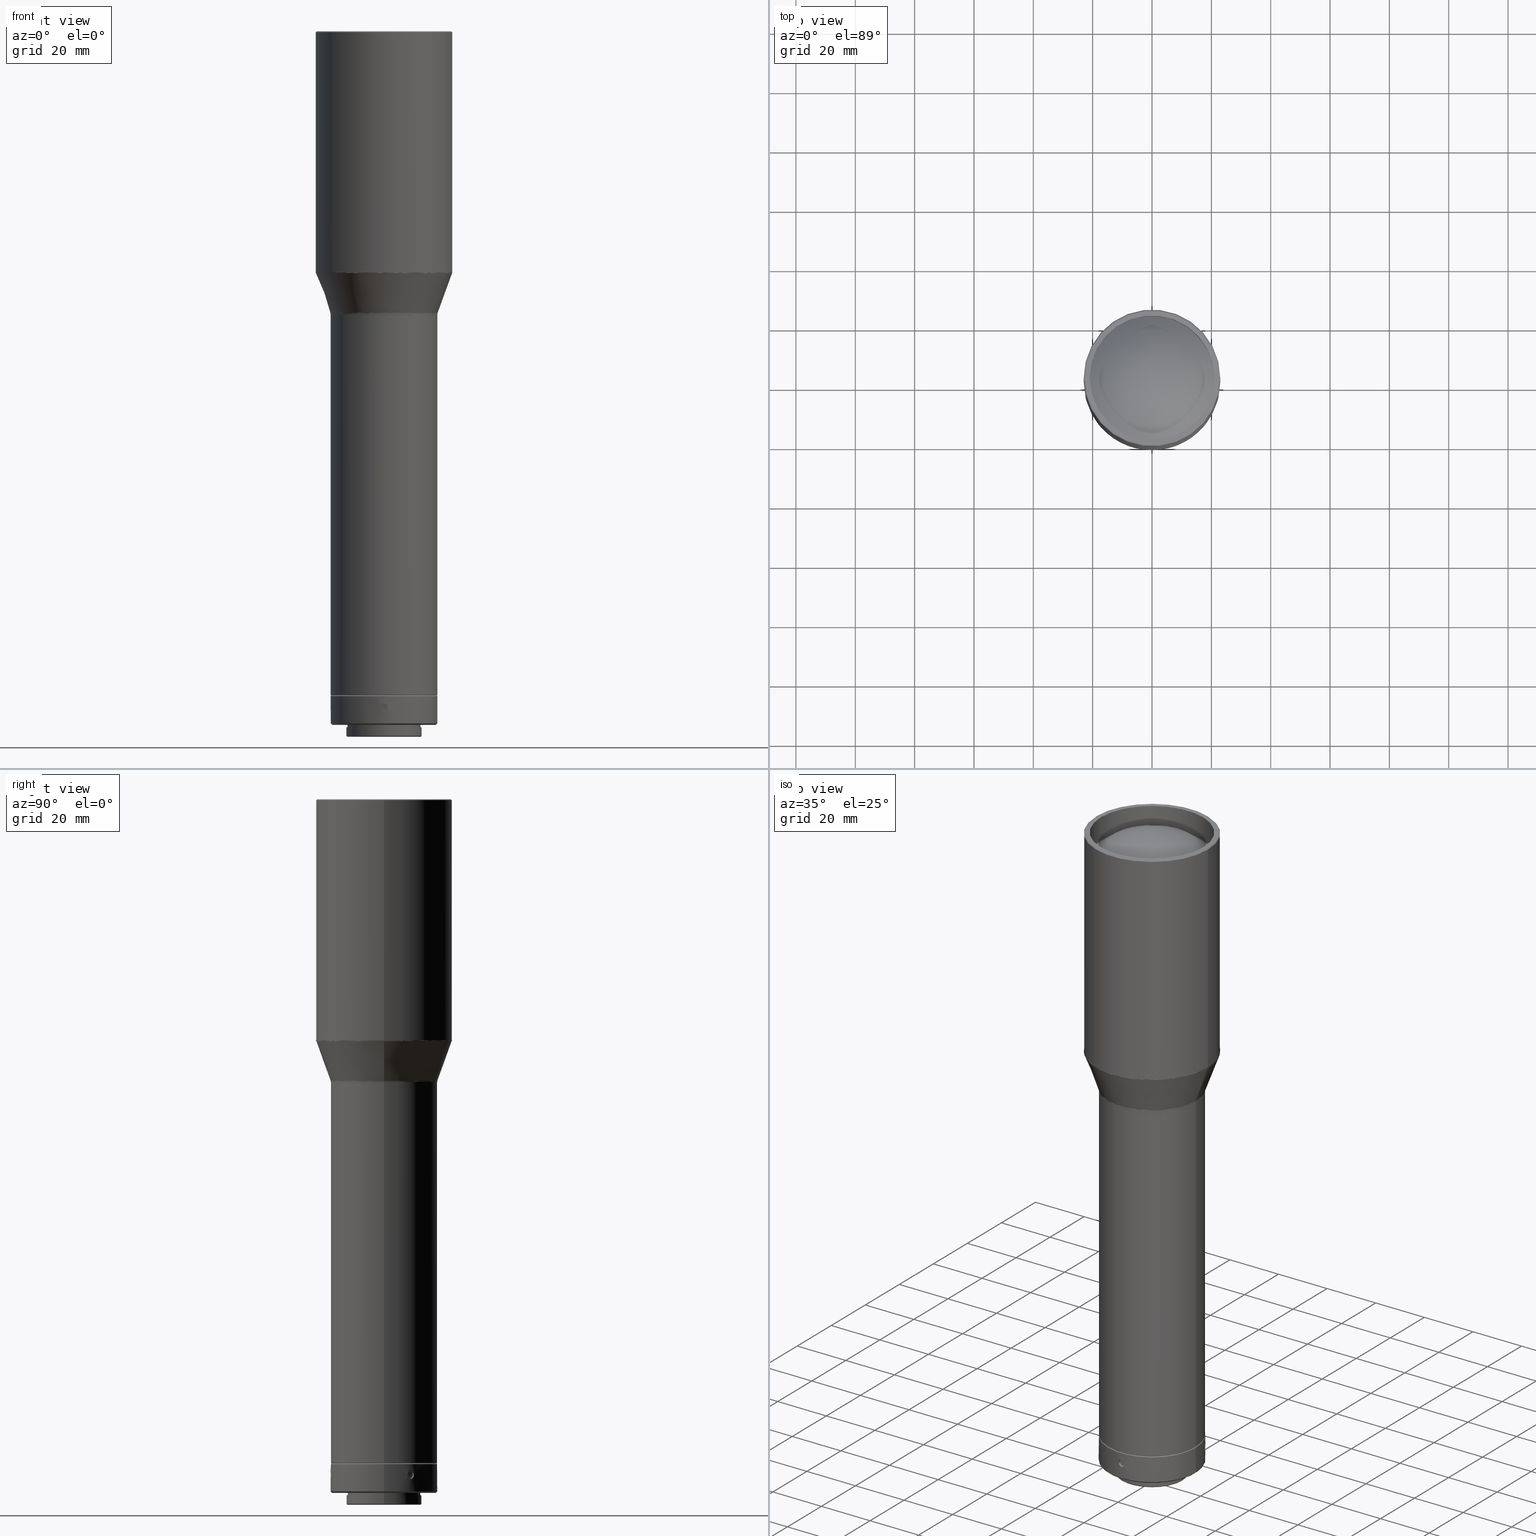
[diagram: canonical four-view strip — front | top / right | iso, engineering-drawing reading convention]
A machine part, canonical four-view strip (front | top / right | iso — engineering-drawing reading convention). The complete STEP part file that produces these views, byte-faithful:
ISO-10303-21;
HEADER;
FILE_DESCRIPTION (( 'STEP AP203' ),
    '1' );
FILE_NAME ('600086.STEP',
    '2024-08-14T02:24:10',
    ( 'Windows User' ),
    ( 'P R C' ),
    'SwSTEP 2.0',
    'SolidWorks 2020',
    '' );
FILE_SCHEMA (( 'CONFIG_CONTROL_DESIGN' ));
ENDSEC;

DATA;
#1 = CARTESIAN_POINT ( 'NONE',  ( 15.14724011265493075, 7.860176997978779667, -664.7798496925934160 ) ) ;
#2 = CIRCLE ( 'NONE', #470, 17.99999999999998934 ) ;
#3 = FACE_OUTER_BOUND ( 'NONE', #606, .T. ) ;
#4 = B_SPLINE_CURVE_WITH_KNOTS ( 'NONE', 3,
 ( #20, #358, #159, #682, #826, #608, #549, #619, #236, #808, #411, #624, #225, #285, #612, #544, #279, #486, #29, #348, #34, #687, #821, #173, #231, #813, #535, #40, #482, #756, #169, #760, #468, #155 ),
 .UNSPECIFIED., .T., .F.,
 ( 4, 2, 2, 2, 2, 2, 2, 2, 2, 2, 2, 2, 2, 2, 2, 2, 4 ),
 ( 0.000000000000000000, 0.0004885519476059295343, 0.0009771038952118590686, 0.001465655842817788603, 0.001954207790423718137, 0.002442759738029647888, 0.002931311685635577206, 0.003419863633241506523, 0.003908415580847436274, 0.004396967528453366025, 0.004885519476059295776, 0.005374071423665224660, 0.005862623371271154411, 0.006351175318877084162, 0.006839727266483013046, 0.007328279214088942797, 0.007816831161694872548 ),
 .UNSPECIFIED. ) ;
#5 = CARTESIAN_POINT ( 'NONE',  ( 14.13231190104881918, 9.565005035894392549, -666.1085857096397831 ) ) ;
#6 = EDGE_LOOP ( 'NONE', ( #406 ) ) ;
#7 = CARTESIAN_POINT ( 'NONE',  ( 1.249999999999999556, -17.01896287182436041, -665.6158166837940371 ) ) ;
#8 = CONICAL_SURFACE ( 'NONE', #477, 23.00000000000003553, 0.7853981633974482790 ) ;
#9 = PLANE ( 'NONE',  #501 ) ;
#10 = EDGE_LOOP ( 'NONE', ( #132 ) ) ;
#11 = ADVANCED_FACE ( 'NONE', ( #412, #824 ), #180, .T. ) ;
#12 = FACE_OUTER_BOUND ( 'NONE', #208, .T. ) ;
#13 = CARTESIAN_POINT ( 'NONE',  ( 0.000000000000000000, 0.000000000000000000, -661.7809450000000879 ) ) ;
#14 = ORIENTED_EDGE ( 'NONE', *, *, #24, .T. ) ;
#15 = DIRECTION ( 'NONE',  ( 1.000000000000000000, 0.000000000000000000, -0.000000000000000000 ) ) ;
#16 = CARTESIAN_POINT ( 'NONE',  ( 0.3291898029938513659, -17.06229266080207552, -664.5641413027866520 ) ) ;
#17 = CARTESIAN_POINT ( 'NONE',  ( -18.02030814396401226, 36.04061628792802452, -533.0425359303010282 ) ) ;
#18 = DIRECTION ( 'NONE',  ( 0.000000000000000000, 0.000000000000000000, 1.000000000000000000 ) ) ;
#19 = FACE_OUTER_BOUND ( 'NONE', #37, .T. ) ;
#20 = CARTESIAN_POINT ( 'NONE',  ( 16.17582393315551315, 7.895740629197085525, -665.7809450000005427 ) ) ;
#21 = CARTESIAN_POINT ( 'NONE',  ( 4.567875856050203761E-15, 1.816993461002733458E-15, -671.2809449999999742 ) ) ;
#22 = FACE_BOUND ( 'NONE', #617, .T. ) ;
#23 = ORIENTED_EDGE ( 'NONE', *, *, #324, .T. ) ;
#24 = EDGE_CURVE ( 'NONE', #747, #747, #663, .T. ) ;
#25 = DIRECTION ( 'NONE',  ( 0.000000000000000000, 0.000000000000000000, 1.000000000000000000 ) ) ;
#26 = DIRECTION ( 'NONE',  ( 0.000000000000000000, 0.000000000000000000, -1.000000000000000000 ) ) ;
#27 = EDGE_LOOP ( 'NONE', ( #729 ) ) ;
#28 = AXIS2_PLACEMENT_3D ( 'NONE', #342, #71, #659 ) ;
#29 = CARTESIAN_POINT ( 'NONE',  ( 14.94412316329297674, 10.03379964370064314, -666.1082458894952651 ) ) ;
#30 = CARTESIAN_POINT ( 'NONE',  ( 17.99999999999999289, 35.99999999999998579, -533.1577091379542708 ) ) ;
#31 = CARTESIAN_POINT ( 'NONE',  ( 22.93969262078591953, 2.387641399258159668E-16, -519.5266381626172461 ) ) ;
#32 = ORIENTED_EDGE ( 'NONE', *, *, #564, .T. ) ;
#33 = PLANE ( 'NONE',  #404 ) ;
#34 = CARTESIAN_POINT ( 'NONE',  ( 15.06517510034525920, 9.851589683955907617, -666.5495771668024645 ) ) ;
#35 = CARTESIAN_POINT ( 'NONE',  ( -14.25349743368180100, 9.383979772889720294, -665.0130305287719921 ) ) ;
#36 = CARTESIAN_POINT ( 'NONE',  ( -23.00000000000000000, -2.393918396847988367E-16, -519.3015679593189589 ) ) ;
#37 = EDGE_LOOP ( 'NONE', ( #662 ) ) ;
#38 = EDGE_CURVE ( 'NONE', #488, #488, #139, .T. ) ;
#39 = AXIS2_PLACEMENT_3D ( 'NONE', #522, #199, #140 ) ;
#40 = CARTESIAN_POINT ( 'NONE',  ( 15.89389197149334088, 8.450273622267832963, -666.8736210156605466 ) ) ;
#41 = CARTESIAN_POINT ( 'NONE',  ( -14.11385437815876998, 9.592012918291169754, -665.9461523660379498 ) ) ;
#42 = VERTEX_POINT ( 'NONE', #162 ) ;
#43 = FACE_OUTER_BOUND ( 'NONE', #6, .T. ) ;
#44 = CARTESIAN_POINT ( 'NONE',  ( -15.01384693159024231, 9.929166768100165186, -665.1509386262733869 ) ) ;
#45 = DIRECTION ( 'NONE',  ( 0.000000000000000000, 0.000000000000000000, 1.000000000000000000 ) ) ;
#46 = CYLINDRICAL_SURFACE ( 'NONE', #227, 17.99999999999998934 ) ;
#47 = CARTESIAN_POINT ( 'NONE',  ( -14.92582393315537814, 10.06080413865839951, -665.6157457607349670 ) ) ;
#48 = DATE_AND_TIME ( #321, #656 ) ;
#49 = UNCERTAINTY_MEASURE_WITH_UNIT (LENGTH_MEASURE( 1.000000000000000082E-05 ), #566, 'distance_accuracy_value', 'NONE');
#50 = EDGE_LOOP ( 'NONE', ( #547 ) ) ;
#51 = AXIS2_PLACEMENT_3D ( 'NONE', #426, #26, #105 ) ;
#52 = CARTESIAN_POINT ( 'NONE',  ( -14.94416663059033112, 10.03373538488429695, -666.1085700172557154 ) ) ;
#53 = ADVANCED_FACE ( 'NONE', ( #295 ), #558, .T. ) ;
#54 = VERTEX_POINT ( 'NONE', #258 ) ;
#55 = CARTESIAN_POINT ( 'NONE',  ( 14.45469751543642722, 9.071507377659420612, -666.8736143237532588 ) ) ;
#56 = CARTESIAN_POINT ( 'NONE',  ( -15.29425696471480478, 7.569495683497283522, -666.4113745755807940 ) ) ;
#57 = PERSON_AND_ORGANIZATION ( #160, #305 ) ;
#58 = CARTESIAN_POINT ( 'NONE',  ( 0.3284442371330014154, -17.99763189204312752, -666.9979603772535484 ) ) ;
#59 = CARTESIAN_POINT ( 'NONE',  ( 7.299024496628086641E-15, -12.29999999999999716, -671.7809450000000879 ) ) ;
#60 = CARTESIAN_POINT ( 'NONE',  ( 15.29435828140182352, 7.569290346758623222, -666.4109610543733879 ) ) ;
#61 = ADVANCED_FACE ( 'NONE', ( #43, #540 ), #220, .T. ) ;
#62 = CYLINDRICAL_SURFACE ( 'NONE', #690, 12.69999999999999751 ) ;
#63 = PERSON_AND_ORGANIZATION_ROLE ( 'creator' ) ;
#64 = CARTESIAN_POINT ( 'NONE',  ( 21.00000000000000000, 0.000000000000000000, -447.0000000000000000 ) ) ;
#65 = CARTESIAN_POINT ( 'NONE',  ( -0.7685930773333526922, -17.98395353626940363, -664.7817755139830069 ) ) ;
#66 = MANIFOLD_SOLID_BREP ( '��ת1', #597 ) ;
#67 = DIRECTION ( 'NONE',  ( 0.000000000000000000, 0.000000000000000000, -1.000000000000000000 ) ) ;
#68 = AXIS2_PLACEMENT_3D ( 'NONE', #814, #355, #337 ) ;
#69 = CARTESIAN_POINT ( 'NONE',  ( 1.000012230497523413, -17.97258022027629920, -665.0130258980899498 ) ) ;
#70 = EDGE_LOOP ( 'NONE', ( #622 ) ) ;
#71 = DIRECTION ( 'NONE',  ( -0.000000000000000000, 3.083952846180989294E-15, 1.000000000000000000 ) ) ;
#72 =( BOUNDED_SURFACE ( )  B_SPLINE_SURFACE ( 3, 3, ( 
 ( #409, #238, #300, #31, #171, #767, #823 ),
 ( #286, #542, #175, #763, #475, #562, #819 ),
 ( #36, #758, #479, #283, #616, #291, #702 ),
 ( #493, #370, #420, #228, #557, #753, #815 ) ),
 .UNSPECIFIED., .F., .T., .F. ) 
 B_SPLINE_SURFACE_WITH_KNOTS ( ( 4, 4 ),
 ( 4, 3, 4 ),
 ( 0.000000000000000000, 1.000000000000000000 ),
 ( 0.000000000000000000, 0.5000000000000000000, 1.000000000000000000 ),
 .UNSPECIFIED. ) 
 GEOMETRIC_REPRESENTATION_ITEM ( )  RATIONAL_B_SPLINE_SURFACE ( (
 ( 1.000000000000000000, 0.3333333333333333148, 0.3333333333333333148, 1.000000000000000000, 0.3333333333333333148, 0.3333333333333333148, 1.000000000000000000),
 ( 0.9898718353414743820, 0.3299572784471581088, 0.3299572784471581088, 0.9898718353414743820, 0.3299572784471581088, 0.3299572784471581088, 0.9898718353414743820),
 ( 0.9898718353414743820, 0.3299572784471581088, 0.3299572784471581088, 0.9898718353414743820, 0.3299572784471581088, 0.3299572784471581088, 0.9898718353414743820),
 ( 1.000000000000000000, 0.3333333333333333148, 0.3333333333333333148, 1.000000000000000000, 0.3333333333333333148, 0.3333333333333333148, 1.000000000000000000) ) ) 
 REPRESENTATION_ITEM ( '' )  SURFACE ( )  );
#73 = CARTESIAN_POINT ( 'NONE',  ( 3.581339779975172355E-33, 3.853573807495302464E-31, -519.1846180192916336 ) ) ;
#74 = CC_DESIGN_DATE_AND_TIME_ASSIGNMENT ( #116, #124, ( #777 ) ) ;
#75 = CYLINDRICAL_SURFACE ( 'NONE', #592, 17.06480580705611061 ) ;
#76 = ORIENTED_EDGE ( 'NONE', *, *, #201, .F. ) ;
#77 = PLANE ( 'NONE',  #570 ) ;
#78 = DIRECTION ( 'NONE',  ( 0.3830490080632378835, -0.9237280213470681067, 1.218036320871736945E-16 ) ) ;
#79 = CARTESIAN_POINT ( 'NONE',  ( 4.336808689942017736E-15, 1.816993461002733458E-15, -675.4809450000001334 ) ) ;
#80 = DIRECTION ( 'NONE',  ( -1.000000000000000000, 0.000000000000000000, -0.000000000000000000 ) ) ;
#81 = EDGE_LOOP ( 'NONE', ( #357 ) ) ;
#82 = AXIS2_PLACEMENT_3D ( 'NONE', #446, #786, #666 ) ;
#83 = FACE_OUTER_BOUND ( 'NONE', #172, .T. ) ;
#84 = DIRECTION ( 'NONE',  ( 0.000000000000000000, 0.000000000000000000, 1.000000000000000000 ) ) ;
#85 = DIRECTION ( 'NONE',  ( 0.000000000000000000, 0.000000000000000000, 1.000000000000000000 ) ) ;
#86 = CARTESIAN_POINT ( 'NONE',  ( -2.775557561562891351E-14, 1.387778780781445676E-14, -447.0000000000000568 ) ) ;
#87 = B_SPLINE_CURVE_WITH_KNOTS ( 'NONE', 3,
 ( #657, #374, #197, #434, #263, #65, #516, #121, #772, #250, #789, #725, #136, #69, #709, #327, #715, #641, #377, #309, #842, #504, #646, #58, #574, #219, #740, #527, #801, #266, #344, #143, #330, #471 ),
 .UNSPECIFIED., .T., .F.,
 ( 4, 2, 2, 2, 2, 2, 2, 2, 2, 2, 2, 2, 2, 2, 2, 2, 4 ),
 ( 0.000000000000000000, 0.0004885519476059282332, 0.0009771038952118564665, 0.001465655842817784700, 0.001954207790423712933, 0.002442759738029640949, 0.002931311685635569399, 0.003419863633241497849, 0.003908415580847425866, 0.004396967528453353882, 0.004885519476059281899, 0.005374071423665210782, 0.005862623371271138799, 0.006351175318877066815, 0.006839727266482995699, 0.007328279214088923715, 0.007816831161694851732 ),
 .UNSPECIFIED. ) ;
#88 = FACE_BOUND ( 'NONE', #400, .T. ) ;
#89 = DIRECTION ( 'NONE',  ( -0.000000000000000000, -0.000000000000000000, -1.000000000000000000 ) ) ;
#90 = CARTESIAN_POINT ( 'NONE',  ( 7.387842338598100427E-15, -12.69999999999999574, -672.5809450000000425 ) ) ;
#91 = DESIGN_CONTEXT ( 'detailed design', #750, 'design' ) ;
#92 = AXIS2_PLACEMENT_3D ( 'NONE', #630, #45, #561 ) ;
#93 = ORIENTED_EDGE ( 'NONE', *, *, #733, .T. ) ;
#94 = CARTESIAN_POINT ( 'NONE',  ( -0.7690069098545839754, -17.04785988651734385, -666.7797828885486524 ) ) ;
#95 = VERTEX_POINT ( 'NONE', #423 ) ;
#96 = CARTESIAN_POINT ( 'NONE',  ( 5.204170427930421283E-15, 1.816993461002733458E-15, -671.2809449999999742 ) ) ;
#97 = DIRECTION ( 'NONE',  ( -0.000000000000000000, -0.000000000000000000, -1.000000000000000000 ) ) ;
#98 = AXIS2_PLACEMENT_3D ( 'NONE', #424, #302, #555 ) ;
#99 = CARTESIAN_POINT ( 'NONE',  ( -0.3291871292452782094, -17.06229270324118730, -666.9977492413829623 ) ) ;
#100 = EDGE_CURVE ( 'NONE', #167, #167, #427, .T. ) ;
#101 = VERTEX_POINT ( 'NONE', #356 ) ;
#102 = EDGE_LOOP ( 'NONE', ( #796 ) ) ;
#103 = CARTESIAN_POINT ( 'NONE',  ( -1.092119772028510960, -17.02993890466842686, -666.4107019141430328 ) ) ;
#104 = CARTESIAN_POINT ( 'NONE',  ( -14.11385400797206024, 9.592013462990317763, -665.6157426036747893 ) ) ;
#105 = DIRECTION ( 'NONE',  ( -1.000000000000000000, 0.000000000000000000, 0.000000000000000000 ) ) ;
#106 = ORIENTED_EDGE ( 'NONE', *, *, #442, .T. ) ;
#107 = CARTESIAN_POINT ( 'NONE',  ( 1.091974288410473948, -17.02994723250910880, -666.4106819271797804 ) ) ;
#108 = CARTESIAN_POINT ( 'NONE',  ( -14.37959791172611190, 9.189563851578057552, -666.7801105159963981 ) ) ;
#109 = CARTESIAN_POINT ( 'NONE',  ( -17.70000000000000639, 1.816993461002733458E-15, -661.7809450000000879 ) ) ;
#110 = CIRCLE ( 'NONE', #325, 12.69999999999999751 ) ;
#111 = CARTESIAN_POINT ( 'NONE',  ( -15.89389229175798235, 8.450273022655027333, -664.6882693457097275 ) ) ;
#112 = COORDINATED_UNIVERSAL_TIME_OFFSET ( 8, 0, .AHEAD. ) ;
#113 = VERTEX_POINT ( 'NONE', #688 ) ;
#114 = EDGE_CURVE ( 'NONE', #42, #42, #613, .T. ) ;
#115 = CARTESIAN_POINT ( 'NONE',  ( -16.10573125108188108, 8.037996199706920919, -665.1505204048874020 ) ) ;
#116 = DATE_AND_TIME ( #184, #686 ) ;
#117 =( NAMED_UNIT ( * ) SI_UNIT ( $, .STERADIAN. ) SOLID_ANGLE_UNIT ( ) );
#118 = CARTESIAN_POINT ( 'NONE',  ( 15.36385433637801512, 7.426949384713388724, -665.6157426036747893 ) ) ;
#119 = ORIENTED_EDGE ( 'NONE', *, *, #788, .F. ) ;
#120 = FACE_OUTER_BOUND ( 'NONE', #595, .T. ) ;
#121 = CARTESIAN_POINT ( 'NONE',  ( -0.3284446131914074973, -17.99763188640062594, -664.5639296990356115 ) ) ;
#122 = CARTESIAN_POINT ( 'NONE',  ( 0.000000000000000000, 0.000000000000000000, -447.0000000000000000 ) ) ;
#123 = AXIS2_PLACEMENT_3D ( 'NONE', #96, #759, #351 ) ;
#124 = DATE_TIME_ROLE ( 'classification_date' ) ;
#125 = ADVANCED_FACE ( 'NONE', ( #269, #683 ), #661, .F. ) ;
#126 = CARTESIAN_POINT ( 'NONE',  ( 14.11385419306414946, 9.592013190642591169, -665.6157398556156295 ) ) ;
#127 = EDGE_LOOP ( 'NONE', ( #200 ) ) ;
#128 = B_SPLINE_CURVE_WITH_KNOTS ( 'NONE', 3,
 ( #244, #47, #299, #44, #707, #563, #183, #640, #822, #491, #293, #111, #560, #365, #115, #174, #625, #249, #765, #359, #831, #429, #704, #502, #620, #177, #828, #836, #487, #551, #629, #52, #290, #232 ),
 .UNSPECIFIED., .T., .F.,
 ( 4, 2, 2, 2, 2, 2, 2, 2, 2, 2, 2, 2, 2, 2, 2, 2, 4 ),
 ( 0.000000000000000000, 0.0004885519476059306185, 0.0009771038952118612370, 0.001465655842817791855, 0.001954207790423722474, 0.002442759738029650490, 0.002931311685635578507, 0.003419863633241506523, 0.003908415580847434539, 0.004396967528453362556, 0.004885519476059290572, 0.005374071423665218589, 0.005862623371271146605, 0.006351175318877074621, 0.006839727266483002638, 0.007328279214088930654, 0.007816831161694858671 ),
 .UNSPECIFIED. ) ;
#129 = CARTESIAN_POINT ( 'NONE',  ( 2.126977070614405733E-15, -4.008608459946269651E-15, -438.0000000000000000 ) ) ;
#130 = COORDINATED_UNIVERSAL_TIME_OFFSET ( 8, 0, .AHEAD. ) ;
#131 = CARTESIAN_POINT ( 'NONE',  ( 14.20250403810274697, 9.460467221701390983, -666.4113745755807940 ) ) ;
#132 = ORIENTED_EDGE ( 'NONE', *, *, #201, .T. ) ;
#133 = CARTESIAN_POINT ( 'NONE',  ( 4.567875856050203761E-15, 1.816993461002733458E-15, -675.4809450000001334 ) ) ;
#134 = DIRECTION ( 'NONE',  ( 0.8660254037844364872, -0.5000000000000038858, 0.000000000000000000 ) ) ;
#135 = VERTEX_POINT ( 'NONE', #192 ) ;
#136 = CARTESIAN_POINT ( 'NONE',  ( 0.7665056236649524513, -17.98405219532854815, -664.7798489321261286 ) ) ;
#137 = APPLICATION_CONTEXT ( 'configuration controlled 3d designs of mechanical parts and assemblies' ) ;
#138 = FACE_OUTER_BOUND ( 'NONE', #523, .T. ) ;
#139 = CIRCLE ( 'NONE', #840, 21.45211006975307555 ) ;
#140 = DIRECTION ( 'NONE',  ( -1.000000000000000000, 0.000000000000000000, 0.000000000000000000 ) ) ;
#141 = EDGE_CURVE ( 'NONE', #415, #415, #247, .T. ) ;
#142 = CARTESIAN_POINT ( 'NONE',  ( 2.126977070614405733E-15, -4.008608459946269651E-15, -438.3000000000000114 ) ) ;
#143 = CARTESIAN_POINT ( 'NONE',  ( -1.217386422865440965, -17.95889563292107738, -666.1085700172557154 ) ) ;
#144 = FACE_OUTER_BOUND ( 'NONE', #292, .T. ) ;
#145 = CARTESIAN_POINT ( 'NONE',  ( -18.06030737921410889, -36.12061475842821778, -532.9326389346559836 ) ) ;
#146 = CIRCLE ( 'NONE', #550, 21.00000000000000000 ) ;
#147 = FACE_BOUND ( 'NONE', #264, .T. ) ;
#148 = FACE_OUTER_BOUND ( 'NONE', #500, .T. ) ;
#149 = CARTESIAN_POINT ( 'NONE',  ( -1.249997845377357253, -17.01896303007617917, -665.9460878983982184 ) ) ;
#150 = DIRECTION ( 'NONE',  ( 1.000000000000000000, 0.000000000000000000, 0.000000000000000000 ) ) ;
#151 = DIRECTION ( 'NONE',  ( 1.000000000000000000, 0.000000000000000000, 0.000000000000000000 ) ) ;
#152 = AXIS2_PLACEMENT_3D ( 'NONE', #129, #445, #807 ) ;
#153 = ADVANCED_FACE ( 'NONE', ( #464 ), #739, .F. ) ;
#154 = AXIS2_PLACEMENT_3D ( 'NONE', #584, #794, #672 ) ;
#155 = CARTESIAN_POINT ( 'NONE',  ( 16.17582393315551315, 7.895740629197085525, -665.7809450000005427 ) ) ;
#156 = DIRECTION ( 'NONE',  ( 1.000000000000000000, 0.000000000000000000, 0.000000000000000000 ) ) ;
#157 = DIRECTION ( 'NONE',  ( 0.000000000000000000, -0.000000000000000000, 1.000000000000000000 ) ) ;
#158 = EDGE_LOOP ( 'NONE', ( #282 ) ) ;
#159 = CARTESIAN_POINT ( 'NONE',  ( 16.16158720264612825, 7.925089998557210968, -665.4536459706282585 ) ) ;
#160 = PERSON ( 'δָ��', 'δָ��', 'δָ��', ('δָ��'), ('δָ��'), ('δָ��') ) ;
#161 = APPROVAL_PERSON_ORGANIZATION ( #568, #413, #581 ) ;
#162 = CARTESIAN_POINT ( 'NONE',  ( 18.06030737921410889, 1.879778351644796385E-16, -532.9326389346558699 ) ) ;
#163 = ORIENTED_EDGE ( 'NONE', *, *, #665, .T. ) ;
#164 = ADVANCED_FACE ( 'NONE', ( #343, #120 ), #701, .F. ) ;
#165 = CARTESIAN_POINT ( 'NONE',  ( 0.1651381931676290105, -17.06480568888673233, -667.0309433867701046 ) ) ;
#166 = CARTESIAN_POINT ( 'NONE',  ( 17.99999999999999645, 1.873501354054954867E-16, -533.1577091379542708 ) ) ;
#167 = VERTEX_POINT ( 'NONE', #833 ) ;
#168 = EDGE_LOOP ( 'NONE', ( #731 ) ) ;
#169 = CARTESIAN_POINT ( 'NONE',  ( 16.10573089449705719, 8.037996915324869818, -666.4113709346066798 ) ) ;
#170 = DIRECTION ( 'NONE',  ( 1.000000000000000000, 0.000000000000000000, 0.000000000000000000 ) ) ;
#171 = CARTESIAN_POINT ( 'NONE',  ( 22.93969262078592308, -45.87938524157184617, -519.5266381626172461 ) ) ;
#172 = EDGE_LOOP ( 'NONE', ( #485 ) ) ;
#173 = CARTESIAN_POINT ( 'NONE',  ( 15.42218430790377504, 9.283256999105457652, -666.9979603772536620 ) ) ;
#174 = CARTESIAN_POINT ( 'NONE',  ( -16.16155327807074116, 7.925159788840828945, -665.4533217959091189 ) ) ;
#175 = CARTESIAN_POINT ( 'NONE',  ( 22.97969185603598774, 45.95938371207197548, -519.4167411669722014 ) ) ;
#176 = FACE_OUTER_BOUND ( 'NONE', #127, .T. ) ;
#177 = CARTESIAN_POINT ( 'NONE',  ( -15.50735797605623034, 9.140483702072652150, -667.0310573759027193 ) ) ;
#178 = PERSON_AND_ORGANIZATION_ROLE ( 'design_owner' ) ;
#179 = EDGE_CURVE ( 'NONE', #350, #350, #827, .T. ) ;
#180 = CONICAL_SURFACE ( 'NONE', #123, 18.00000000000001066, 0.7853981633974621568 ) ;
#181 = CARTESIAN_POINT ( 'NONE',  ( -15.14819508340303855, 7.858314425443285067, -664.7817800869203211 ) ) ;
#182 = CARTESIAN_POINT ( 'NONE',  ( 14.37959746506116154, 9.189564550987853409, -664.7817800869203211 ) ) ;
#183 = CARTESIAN_POINT ( 'NONE',  ( -15.26487564935874452, 9.539717018441047358, -664.6886491845228875 ) ) ;
#184 = CALENDAR_DATE ( 2024, 14, 8 ) ;
#185 = DIRECTION ( 'NONE',  ( -0.000000000000000000, -0.000000000000000000, -1.000000000000000000 ) ) ;
#186 = EDGE_CURVE ( 'NONE', #113, #113, #128, .T. ) ;
#187 = PERSON_AND_ORGANIZATION ( #160, #305 ) ;
#188 = CARTESIAN_POINT ( 'NONE',  ( -23.00000000000000000, -2.393918396847989846E-16, -519.1846180192916336 ) ) ;
#189 = CARTESIAN_POINT ( 'NONE',  ( 14.13226685015580486, 9.565071105457903400, -665.4536346299337310 ) ) ;
#190 = FACE_OUTER_BOUND ( 'NONE', #528, .T. ) ;
#191 = CONICAL_SURFACE ( 'NONE', #632, 22.93969262078589111, 0.3490658503988669503 ) ;
#192 = CARTESIAN_POINT ( 'NONE',  ( -22.70000000000001350, -4.008608459946269651E-15, -438.0000000000000000 ) ) ;
#193 = EDGE_LOOP ( 'NONE', ( #334 ) ) ;
#194 = DIRECTION ( 'NONE',  ( 0.000000000000000000, 0.000000000000000000, 1.000000000000000000 ) ) ;
#195 = CYLINDRICAL_SURFACE ( 'NONE', #154, 1.249999999999991784 ) ;
#196 = VERTEX_POINT ( 'NONE', #510 ) ;
#197 = CARTESIAN_POINT ( 'NONE',  ( -1.217464335294272670, -17.95889008224765959, -665.4536459706278038 ) ) ;
#198 = LOCAL_TIME ( 10, 24, 10.00000000000000000, #654 ) ;
#199 = DIRECTION ( 'NONE',  ( -0.000000000000000000, -0.000000000000000000, -1.000000000000000000 ) ) ;
#200 = ORIENTED_EDGE ( 'NONE', *, *, #843, .F. ) ;
#201 = EDGE_CURVE ( 'NONE', #626, #626, #571, .T. ) ;
#202 = CARTESIAN_POINT ( 'NONE',  ( 0.7690123494076360755, -17.04785964284116773, -664.7821110708604238 ) ) ;
#203 = CIRCLE ( 'NONE', #311, 12.29999999999999893 ) ;
#204 = DIRECTION ( 'NONE',  ( 0.000000000000000000, 0.000000000000000000, -1.000000000000000000 ) ) ;
#205 = CARTESIAN_POINT ( 'NONE',  ( 1.217493121030243319, -17.02143516517919153, -665.4537900387898617 ) ) ;
#206 = CARTESIAN_POINT ( 'NONE',  ( -17.99999999999999289, 35.99999999999998579, -533.1577091379542708 ) ) ;
#207 = FACE_BOUND ( 'NONE', #520, .T. ) ;
#208 = EDGE_LOOP ( 'NONE', ( #591 ) ) ;
#209 = DIRECTION ( 'NONE',  ( 0.000000000000000000, -2.188640653240914699E-17, 1.000000000000000000 ) ) ;
#210 = CARTESIAN_POINT ( 'NONE',  ( 1.249999999999999556, -17.01896287182436396, -665.7809450000000879 ) ) ;
#211 = CIRCLE ( 'NONE', #51, 22.70000000000001350 ) ;
#212 = ADVANCED_FACE ( 'NONE', ( #383, #19 ), #77, .F. ) ;
#213 = DIRECTION ( 'NONE',  ( 1.000000000000000000, 0.000000000000000000, 0.000000000000000000 ) ) ;
#214 = FACE_BOUND ( 'NONE', #158, .T. ) ;
#215 = EDGE_LOOP ( 'NONE', ( #32 ) ) ;
#216 = FACE_OUTER_BOUND ( 'NONE', #627, .T. ) ;
#217 = CARTESIAN_POINT ( 'NONE',  ( -0.6297292042223966435, -17.05384524341908659, -666.8729238721660977 ) ) ;
#218 = CARTESIAN_POINT ( 'NONE',  ( 17.99999999999999645, 1.873501354054954867E-16, -533.1577091379542708 ) ) ;
#219 = CARTESIAN_POINT ( 'NONE',  ( -0.1622121008446782697, -18.00000780388025490, -667.0310573759026056 ) ) ;
#220 = CONICAL_SURFACE ( 'NONE', #512, 12.69999999999999574, 0.7853981633974482790 ) ;
#221 = AXIS2_PLACEMENT_3D ( 'NONE', #142, #450, #799 ) ;
#222 = CARTESIAN_POINT ( 'NONE',  ( 17.99999999999999645, 35.99999999999999289, -533.2746590779815961 ) ) ;
#223 = CARTESIAN_POINT ( 'NONE',  ( 3.581339779975172355E-33, 3.853573807495302464E-31, -497.9083896709889814 ) ) ;
#224 = ORIENTED_EDGE ( 'NONE', *, *, #588, .F. ) ;
#225 = CARTESIAN_POINT ( 'NONE',  ( 15.19139325230758963, 9.655839439901392041, -664.7798489321262423 ) ) ;
#226 = CARTESIAN_POINT ( 'NONE',  ( 18.06030737921411244, 1.879778351644796878E-16, -532.9326389346558699 ) ) ;
#227 = AXIS2_PLACEMENT_3D ( 'NONE', #223, #696, #546 ) ;
#228 = CARTESIAN_POINT ( 'NONE',  ( 23.00000000000000000, 2.393918396847997242E-16, -519.1846180192916336 ) ) ;
#229 = ORIENTED_EDGE ( 'NONE', *, *, #265, .T. ) ;
#230 = CC_DESIGN_PERSON_AND_ORGANIZATION_ASSIGNMENT ( #57, #178, ( #495 ) ) ;
#231 = CARTESIAN_POINT ( 'NONE',  ( 15.50648075862407005, 9.141971788833757273, -667.0308320273638856 ) ) ;
#232 = CARTESIAN_POINT ( 'NONE',  ( -14.92582393315539413, 10.06080413865837819, -665.7809450000002016 ) ) ;
#233 = FACE_OUTER_BOUND ( 'NONE', #328, .T. ) ;
#234 = ORIENTED_EDGE ( 'NONE', *, *, #179, .T. ) ;
#235 = AXIS2_PLACEMENT_3D ( 'NONE', #467, #209, #252 ) ;
#236 = CARTESIAN_POINT ( 'NONE',  ( 15.67042028344148719, 8.858020202463210424, -664.5310579727665754 ) ) ;
#237 = CARTESIAN_POINT ( 'NONE',  ( -14.13226717268871013, 9.565070629805246583, -666.1082573854638440 ) ) ;
#238 = CARTESIAN_POINT ( 'NONE',  ( -22.93969262078592308, 45.87938524157184617, -519.5266381626172461 ) ) ;
#239 = DIRECTION ( 'NONE',  ( 0.000000000000000000, -2.188640653240914699E-17, 1.000000000000000000 ) ) ;
#240 = CARTESIAN_POINT ( 'NONE',  ( -15.08368490749560564, 7.982022148857697452, -664.6886545403232276 ) ) ;
#241 = CALENDAR_DATE ( 2024, 14, 8 ) ;
#242 = CARTESIAN_POINT ( 'NONE',  ( 12.30000000000000426, 1.816993461002733458E-15, -672.5809450000000425 ) ) ;
#243 = CC_DESIGN_SECURITY_CLASSIFICATION ( #777, ( #360 ) ) ;
#244 = CARTESIAN_POINT ( 'NONE',  ( -14.92582393315539413, 10.06080413865837819, -665.7809450000002016 ) ) ;
#245 = APPROVAL_STATUS ( 'not_yet_approved' ) ;
#246 = EDGE_LOOP ( 'NONE', ( #543 ) ) ;
#247 = CIRCLE ( 'NONE', #323, 18.00000000000000355 ) ;
#248 = CONICAL_SURFACE ( 'NONE', #39, 17.99999999999998224, 0.7853981633974482790 ) ;
#249 = CARTESIAN_POINT ( 'NONE',  ( -16.17582379988434482, 7.895740902226659585, -665.9461462896941839 ) ) ;
#250 = CARTESIAN_POINT ( 'NONE',  ( 0.1622122895001362197, -18.00000780388930366, -664.5308326239671715 ) ) ;
#251 = ADVANCED_FACE ( 'NONE', ( #216, #462 ), #62, .T. ) ;
#252 = DIRECTION ( 'NONE',  ( 0.000000000000000000, -1.000000000000000000, 0.000000000000000000 ) ) ;
#253 = PERSON_AND_ORGANIZATION ( #160, #305 ) ;
#254 = CARTESIAN_POINT ( 'NONE',  ( 14.69657425385520177, 8.674381716218666938, -664.5310582626091218 ) ) ;
#255 = LOCAL_TIME ( 10, 24, 10.00000000000000000, #130 ) ;
#256 = CONICAL_SURFACE ( 'NONE', #362, 18.00000000000001421, 0.7853981633974831400 ) ;
#257 = CARTESIAN_POINT ( 'NONE',  ( -8.326672684688678984E-16, 15.00000000000000533, -661.7809450000000879 ) ) ;
#258 = CARTESIAN_POINT ( 'NONE',  ( -1.690344460788580619E-15, -17.06480580705611061, -664.5309450000000879 ) ) ;
#259 = CARTESIAN_POINT ( 'NONE',  ( 15.25310878955351157, 7.652685289438835525, -666.5495820729604475 ) ) ;
#260 = CYLINDRICAL_SURFACE ( 'NONE', #152, 23.00000000000001421 ) ;
#261 = AXIS2_PLACEMENT_3D ( 'NONE', #371, #97, #353 ) ;
#262 = CARTESIAN_POINT ( 'NONE',  ( -1.249999999999982681, -17.95654476785553300, -665.7809449999999742 ) ) ;
#263 = CARTESIAN_POINT ( 'NONE',  ( -0.9991402188564446618, -17.97261914514089653, -665.0123138769148454 ) ) ;
#264 = EDGE_LOOP ( 'NONE', ( #850 ) ) ;
#265 = EDGE_CURVE ( 'NONE', #829, #829, #203, .T. ) ;
#266 = CARTESIAN_POINT ( 'NONE',  ( -1.000011374074654125, -17.97258026762708383, -666.5488651707623831 ) ) ;
#267 = FACE_OUTER_BOUND ( 'NONE', #820, .T. ) ;
#268 = CARTESIAN_POINT ( 'NONE',  ( 1.092125298321244609, -17.02993854700953236, -665.1511972718047900 ) ) ;
#269 = FACE_OUTER_BOUND ( 'NONE', #27, .T. ) ;
#270 = CLOSED_SHELL ( 'NONE', ( #308, #395 ) ) ;
#271 = DIRECTION ( 'NONE',  ( 1.000000000000000000, 0.000000000000000000, 0.000000000000000000 ) ) ;
#272 = CARTESIAN_POINT ( 'NONE',  ( -15.36385419306402689, 7.426949681181715057, -665.9461501443845464 ) ) ;
#273 = ADVANCED_FACE ( 'NONE', ( #671 ), #508, .T. ) ;
#274 = CARTESIAN_POINT ( 'NONE',  ( -1.216805023115582030, -17.02148336682453689, -665.4517605304106382 ) ) ;
#275 = CARTESIAN_POINT ( 'NONE',  ( 18.02030814396401226, -36.04061628792802452, -533.0425359303010282 ) ) ;
#276 = FACE_BOUND ( 'NONE', #835, .T. ) ;
#277 = ORIENTED_EDGE ( 'NONE', *, *, #733, .F. ) ;
#278 = CARTESIAN_POINT ( 'NONE',  ( -14.93947813002422365, 8.248788975857060279, -666.9987288744157468 ) ) ;
#279 = CARTESIAN_POINT ( 'NONE',  ( 14.92582376334306105, 10.06080439058547249, -665.6157482969530292 ) ) ;
#280 = CARTESIAN_POINT ( 'NONE',  ( 17.99999999999999645, -35.99999999999999289, -533.2746590779815961 ) ) ;
#281 = FACE_OUTER_BOUND ( 'NONE', #372, .T. ) ;
#282 = ORIENTED_EDGE ( 'NONE', *, *, #633, .T. ) ;
#283 = CARTESIAN_POINT ( 'NONE',  ( 23.00000000000000000, 2.393918396847997242E-16, -519.3015679593189589 ) ) ;
#284 = ORIENTED_EDGE ( 'NONE', *, *, #615, .F. ) ;
#285 = CARTESIAN_POINT ( 'NONE',  ( 15.06470492706444908, 9.852326105843838278, -665.0130258980900635 ) ) ;
#286 = CARTESIAN_POINT ( 'NONE',  ( -22.97969185603599485, -2.391804656002717630E-16, -519.4167411669722014 ) ) ;
#287 = ADVANCED_FACE ( 'NONE', ( #534, #148 ), #780, .F. ) ;
#288 = CARTESIAN_POINT ( 'NONE',  ( 2.126977070614405733E-15, 21.75000000000001066, -438.0000000000000000 ) ) ;
#289 = CARTESIAN_POINT ( 'NONE',  ( 1.249999999999999556, -17.01896287182436751, -665.9460733162061388 ) ) ;
#290 = CARTESIAN_POINT ( 'NONE',  ( -14.92582393315541189, 10.06080413865835510, -665.9461442392653225 ) ) ;
#291 = CARTESIAN_POINT ( 'NONE',  ( -22.99999999999999645, -45.99999999999999289, -519.3015679593189589 ) ) ;
#292 = EDGE_LOOP ( 'NONE', ( #229 ) ) ;
#293 = CARTESIAN_POINT ( 'NONE',  ( -15.74948724688812440, 8.716454428236502849, -664.5631601631300782 ) ) ;
#294 = CARTESIAN_POINT ( 'NONE',  ( -15.36385419306402333, 7.426949681181712393, -665.7809450000000879 ) ) ;
#295 = FACE_OUTER_BOUND ( 'NONE', #421, .T. ) ;
#296 = AXIS2_PLACEMENT_3D ( 'NONE', #122, #576, #847 ) ;
#297 = CIRCLE ( 'NONE', #28, 17.49999999999997513 ) ;
#298 = ADVANCED_FACE ( 'NONE', ( #401, #83 ), #260, .T. ) ;
#299 = CARTESIAN_POINT ( 'NONE',  ( -14.94412286735163242, 10.03380008369035714, -665.4536459706282585 ) ) ;
#300 = CARTESIAN_POINT ( 'NONE',  ( 22.93969262078592308, 45.87938524157184617, -519.5266381626172461 ) ) ;
#301 = CC_DESIGN_DATE_AND_TIME_ASSIGNMENT ( #837, #380, ( #755 ) ) ;
#302 = DIRECTION ( 'NONE',  ( -0.000000000000000000, -0.000000000000000000, 1.000000000000000000 ) ) ;
#303 = COORDINATED_UNIVERSAL_TIME_OFFSET ( 8, 0, .AHEAD. ) ;
#304 = VERTEX_POINT ( 'NONE', #262 ) ;
#305 = ORGANIZATION ( 'δָ��', 'δָ��', '' ) ;
#306 = CARTESIAN_POINT ( 'NONE',  ( -14.86052205529625603, 8.390415794333536681, -664.5310582626091218 ) ) ;
#307 = APPLICATION_PROTOCOL_DEFINITION ( 'international standard', 'config_control_design', 1994, #750 ) ;
#308 = ADVANCED_FACE ( 'NONE', ( #505 ), #778, .T. ) ;
#309 = CARTESIAN_POINT ( 'NONE',  ( 1.091986416381275582, -17.96695628302231995, -666.4109526652778186 ) ) ;
#310 = ORIENTED_EDGE ( 'NONE', *, *, #24, .F. ) ;
#311 = AXIS2_PLACEMENT_3D ( 'NONE', #335, #802, #737 ) ;
#312 = DIRECTION ( 'NONE',  ( -0.000000000000000000, 0.000000000000000000, 1.000000000000000000 ) ) ;
#313 = DATE_AND_TIME ( #241, #846 ) ;
#314 = CARTESIAN_POINT ( 'NONE',  ( 23.00000000000001776, -4.008608459946269651E-15, -438.3000000000000114 ) ) ;
#315 = DIRECTION ( 'NONE',  ( -1.000000000000000000, 0.000000000000000000, -0.000000000000000000 ) ) ;
#316 = PLANE ( 'NONE',  #296 ) ;
#317 = VERTEX_POINT ( 'NONE', #578 ) ;
#318 = CARTESIAN_POINT ( 'NONE',  ( 14.85967054413887389, 8.391923753073523784, -664.5308323371386905 ) ) ;
#319 = ORIENTED_EDGE ( 'NONE', *, *, #481, .T. ) ;
#320 = CARTESIAN_POINT ( 'NONE',  ( -15.08350459738926475, 7.982381563557976456, -666.8736143237532588 ) ) ;
#321 = CALENDAR_DATE ( 2024, 14, 8 ) ;
#322 = CARTESIAN_POINT ( 'NONE',  ( 14.11385419306415301, 9.592013190642591169, -665.7809450000000879 ) ) ;
#323 = AXIS2_PLACEMENT_3D ( 'NONE', #21, #25, #213 ) ;
#324 = EDGE_CURVE ( 'NONE', #95, #95, #439, .T. ) ;
#325 = AXIS2_PLACEMENT_3D ( 'NONE', #792, #589, #460 ) ;
#326 = DIRECTION ( 'NONE',  ( 0.5000000000000037748, 0.8660254037844363761, 0.000000000000000000 ) ) ;
#327 = CARTESIAN_POINT ( 'NONE',  ( 1.217386932848478098, -17.95889559784533063, -665.4533217959091189 ) ) ;
#328 = EDGE_LOOP ( 'NONE', ( #14 ) ) ;
#329 = DIRECTION ( 'NONE',  ( -2.220446049250313081E-16, 1.000000000000000000, 0.000000000000000000 ) ) ;
#330 = CARTESIAN_POINT ( 'NONE',  ( -1.249999999999997113, -17.95654476785554365, -665.9461442392654362 ) ) ;
#331 = EDGE_LOOP ( 'NONE', ( #480 ) ) ;
#332 = CARTESIAN_POINT ( 'NONE',  ( -0.3271656172828664721, -17.06234064159689723, -664.5634548235362900 ) ) ;
#333 = CARTESIAN_POINT ( 'NONE',  ( 0.000000000000000000, -3.469446951953614189E-15, -438.0000000000000000 ) ) ;
#334 = ORIENTED_EDGE ( 'NONE', *, *, #38, .F. ) ;
#335 = CARTESIAN_POINT ( 'NONE',  ( 4.567875856050203761E-15, 1.816993461002733458E-15, -672.5809450000000425 ) ) ;
#336 = FACE_OUTER_BOUND ( 'NONE', #331, .T. ) ;
#337 = DIRECTION ( 'NONE',  ( 1.000000000000000000, 1.040834085586084103E-17, 0.000000000000000000 ) ) ;
#338 = AXIS2_PLACEMENT_3D ( 'NONE', #734, #89, #156 ) ;
#339 = FACE_BOUND ( 'NONE', #720, .T. ) ;
#340 = CC_DESIGN_PERSON_AND_ORGANIZATION_ASSIGNMENT ( #253, #63, ( #360 ) ) ;
#341 = DIRECTION ( 'NONE',  ( -0.3830490080632378835, 0.9237280213470681067, 0.000000000000000000 ) ) ;
#342 = CARTESIAN_POINT ( 'NONE',  ( 5.204170427930421283E-15, 2.750170379121730890E-16, -671.7809450000000879 ) ) ;
#343 = FACE_OUTER_BOUND ( 'NONE', #472, .T. ) ;
#344 = CARTESIAN_POINT ( 'NONE',  ( -1.091755923036186848, -17.96697055881274707, -666.4113709346066798 ) ) ;
#345 = DIRECTION ( 'NONE',  ( -1.232595164407830946E-32, -1.318609258053555361E-16, -1.000000000000000000 ) ) ;
#346 = CARTESIAN_POINT ( 'NONE',  ( 17.99999999999999289, -35.99999999999998579, -533.1577091379542708 ) ) ;
#347 = FACE_OUTER_BOUND ( 'NONE', #689, .T. ) ;
#348 = CARTESIAN_POINT ( 'NONE',  ( 15.01384736159116073, 9.929166118684838338, -666.4109526652775912 ) ) ;
#349 = EDGE_CURVE ( 'NONE', #692, #692, #556, .T. ) ;
#350 = VERTEX_POINT ( 'NONE', #621 ) ;
#351 = DIRECTION ( 'NONE',  ( 0.000000000000000000, -1.000000000000000000, 6.167905692361977011E-15 ) ) ;
#352 = CIRCLE ( 'NONE', #559, 12.40000000000000746 ) ;
#353 = DIRECTION ( 'NONE',  ( 1.000000000000000000, 1.040834085586084257E-17, 0.000000000000000000 ) ) ;
#354 = CARTESIAN_POINT ( 'NONE',  ( 1.216801335681630514, -17.02148363386920948, -666.1101424384568190 ) ) ;
#355 = DIRECTION ( 'NONE',  ( 0.000000000000000000, 0.000000000000000000, 1.000000000000000000 ) ) ;
#356 = CARTESIAN_POINT ( 'NONE',  ( 12.40000000000001101, 1.816993461002733458E-15, -675.7809450000000879 ) ) ;
#357 = ORIENTED_EDGE ( 'NONE', *, *, #179, .F. ) ;
#358 = CARTESIAN_POINT ( 'NONE',  ( 16.17582393315551670, 7.895740629197055327, -665.6157457607351944 ) ) ;
#359 = CARTESIAN_POINT ( 'NONE',  ( -16.10583377797241766, 8.037790164337414112, -666.4109526652775912 ) ) ;
#360 = PRODUCT_DEFINITION_FORMATION_WITH_SPECIFIED_SOURCE ( '�κ�', '', #495, .NOT_KNOWN. ) ;
#361 = CARTESIAN_POINT ( 'NONE',  ( 18.00000000000000711, 1.816993461002733458E-15, -671.2809449999999742 ) ) ;
#362 = AXIS2_PLACEMENT_3D ( 'NONE', #456, #157, #399 ) ;
#363 = ORIENTED_EDGE ( 'NONE', *, *, #38, .T. ) ;
#364 = ADVANCED_FACE ( 'NONE', ( #716 ), #316, .T. ) ;
#365 = CARTESIAN_POINT ( 'NONE',  ( -16.06471715756162411, 8.120254114432409409, -665.0130258980896087 ) ) ;
#366 = VERTEX_POINT ( 'NONE', #631 ) ;
#367 = CC_DESIGN_PERSON_AND_ORGANIZATION_ASSIGNMENT ( #565, #705, ( #755 ) ) ;
#368 = CARTESIAN_POINT ( 'NONE',  ( -15.36385419306401978, 7.426949681181708840, -665.6157398556156295 ) ) ;
#369 = APPROVAL_STATUS ( 'not_yet_approved' ) ;
#370 = CARTESIAN_POINT ( 'NONE',  ( -23.00000000000000000, 46.00000000000000000, -519.1846180192916336 ) ) ;
#371 = CARTESIAN_POINT ( 'NONE',  ( 3.581339779975172355E-33, 3.853573807495302464E-31, -519.5266381626172461 ) ) ;
#372 = EDGE_LOOP ( 'NONE', ( #224 ) ) ;
#373 = CARTESIAN_POINT ( 'NONE',  ( -15.25310919618764061, 7.652684479523652605, -665.0123090578186975 ) ) ;
#374 = CARTESIAN_POINT ( 'NONE',  ( -1.249999999999968026, -17.95654476785553300, -665.6157457607343986 ) ) ;
#375 = DIRECTION ( 'NONE',  ( 1.000000000000000000, 0.000000000000000000, 0.000000000000000000 ) ) ;
#376 = APPLICATION_PROTOCOL_DEFINITION ( 'international standard', 'config_control_design', 1994, #137 ) ;
#377 = CARTESIAN_POINT ( 'NONE',  ( 1.217463806281623651, -17.95889011854548656, -666.1082458894954925 ) ) ;
#378 = ADVANCED_BREP_SHAPE_REPRESENTATION ( '600086', ( #66, #642, #92 ), #711 ) ;
#379 = CARTESIAN_POINT ( 'NONE',  ( -14.69657435606843343, 8.674381539200854974, -667.0308317375328215 ) ) ;
#380 = DATE_TIME_ROLE ( 'creation_date' ) ;
#381 = CARTESIAN_POINT ( 'NONE',  ( 14.25349794453302188, 9.383978996322124289, -666.5488606293558860 ) ) ;
#382 = EDGE_LOOP ( 'NONE', ( #23 ) ) ;
#383 = FACE_BOUND ( 'NONE', #710, .T. ) ;
#384 = PERSON_AND_ORGANIZATION_ROLE ( 'classification_officer' ) ;
#385 = VERTEX_POINT ( 'NONE', #718 ) ;
#386 = ORIENTED_EDGE ( 'NONE', *, *, #349, .F. ) ;
#387 = CARTESIAN_POINT ( 'NONE',  ( -15.14723973052279327, 7.860177733632577990, -666.7820409029219491 ) ) ;
#388 = FACE_OUTER_BOUND ( 'NONE', #538, .T. ) ;
#389 = CARTESIAN_POINT ( 'NONE',  ( 14.93947832574948542, 8.248788624445806406, -664.5631612044926442 ) ) ;
#390 = ORIENTED_EDGE ( 'NONE', *, *, #665, .F. ) ;
#391 = CIRCLE ( 'NONE', #261, 22.93969262078588756 ) ;
#392 = CARTESIAN_POINT ( 'NONE',  ( 4.567875856050203761E-15, 1.816993461002733458E-15, -665.7809450000000879 ) ) ;
#393 = DIRECTION ( 'NONE',  ( 1.000000000000000000, 0.000000000000000000, 0.000000000000000000 ) ) ;
#394 = CARTESIAN_POINT ( 'NONE',  ( -0.1651395523639991314, -17.06480568888511584, -664.5309466132522402 ) ) ;
#395 = ADVANCED_FACE ( 'NONE', ( #190 ), #441, .F. ) ;
#396 = FACE_OUTER_BOUND ( 'NONE', #658, .T. ) ;
#397 = ORIENTED_EDGE ( 'NONE', *, *, #691, .F. ) ;
#398 = CARTESIAN_POINT ( 'NONE',  ( -1.091979847838631335, -17.02994687259118223, -665.1512173674376527 ) ) ;
#399 = DIRECTION ( 'NONE',  ( 1.000000000000000000, 0.000000000000000000, 0.000000000000000000 ) ) ;
#400 = EDGE_LOOP ( 'NONE', ( #693 ) ) ;
#401 = FACE_OUTER_BOUND ( 'NONE', #748, .T. ) ;
#402 = AXIS2_PLACEMENT_3D ( 'NONE', #721, #515, #78 ) ;
#403 = CARTESIAN_POINT ( 'NONE',  ( 18.02030814396401226, 36.04061628792802452, -533.0425359303010282 ) ) ;
#404 = AXIS2_PLACEMENT_3D ( 'NONE', #288, #418, #315 ) ;
#405 = CARTESIAN_POINT ( 'NONE',  ( 0.000000000000000000, 0.000000000000000000, -438.0000000000000000 ) ) ;
#406 = ORIENTED_EDGE ( 'NONE', *, *, #324, .F. ) ;
#407 = FACE_OUTER_BOUND ( 'NONE', #637, .T. ) ;
#408 = CARTESIAN_POINT ( 'NONE',  ( -18.02030814396401226, -36.04061628792802452, -533.0425359303010282 ) ) ;
#409 = CARTESIAN_POINT ( 'NONE',  ( -22.93969262078591953, -2.387641399258151779E-16, -519.5266381626172461 ) ) ;
#410 = ADVANCED_FACE ( 'NONE', ( #336, #144 ), #521, .T. ) ;
#411 = CARTESIAN_POINT ( 'NONE',  ( 15.42341458922628838, 9.281228838265839443, -664.5631601631301919 ) ) ;
#412 = FACE_BOUND ( 'NONE', #744, .T. ) ;
#413 = APPROVAL ( #506, 'δָ��' ) ;
#414 = CARTESIAN_POINT ( 'NONE',  ( 0.3271628678866277951, -17.06234068555284011, -666.9984357421195682 ) ) ;
#415 = VERTEX_POINT ( 'NONE', #361 ) ;
#416 = ORIENTED_EDGE ( 'NONE', *, *, #481, .F. ) ;
#417 = AXIS2_PLACEMENT_3D ( 'NONE', #697, #741, #151 ) ;
#418 = DIRECTION ( 'NONE',  ( 0.000000000000000000, 0.000000000000000000, -1.000000000000000000 ) ) ;
#419 = CARTESIAN_POINT ( 'NONE',  ( -15.29435865535096006, 7.569289590045381821, -665.1509303449670369 ) ) ;
#420 = CARTESIAN_POINT ( 'NONE',  ( 23.00000000000000000, 46.00000000000000000, -519.1846180192916336 ) ) ;
#421 = EDGE_LOOP ( 'NONE', ( #675 ) ) ;
#422 = CARTESIAN_POINT ( 'NONE',  ( -14.25397426259829992, 9.383237053721568799, -666.5495820729604475 ) ) ;
#423 = CARTESIAN_POINT ( 'NONE',  ( 12.70000000000000284, 1.816993461002733458E-15, -675.4809450000001334 ) ) ;
#424 = CARTESIAN_POINT ( 'NONE',  ( 4.567875856050203761E-15, 1.816993461002733458E-15, -662.0809450000000425 ) ) ;
#425 = APPROVAL_DATE_TIME ( #313, #413 ) ;
#426 = CARTESIAN_POINT ( 'NONE',  ( 1.734723475976807094E-15, -4.008608459946269651E-15, -438.0000000000000000 ) ) ;
#427 = CIRCLE ( 'NONE', #338, 12.29999999999999893 ) ;
#428 = AXIS2_PLACEMENT_3D ( 'NONE', #13, #743, #150 ) ;
#429 = CARTESIAN_POINT ( 'NONE',  ( -15.95885680708792798, 8.326356316898310794, -666.7801150424837715 ) ) ;
#430 = CARTESIAN_POINT ( 'NONE',  ( 14.94062003314846443, 8.246702428907834559, -666.9979570097093529 ) ) ;
#431 = ADVANCED_FACE ( 'NONE', ( #525, #12 ), #195, .F. ) ;
#432 = CARTESIAN_POINT ( 'NONE',  ( -15.36385419306402333, 7.426949681181712393, -665.7809450000000879 ) ) ;
#433 = APPROVAL_ROLE ( '' ) ;
#434 = CARTESIAN_POINT ( 'NONE',  ( -1.091987193791577493, -17.96695623533828368, -665.1509386262725911 ) ) ;
#435 = CIRCLE ( 'NONE', #848, 21.00000000000000000 ) ;
#436 = DIRECTION ( 'NONE',  ( -1.000000000000000000, 0.000000000000000000, 0.000000000000000000 ) ) ;
#437 = VERTEX_POINT ( 'NONE', #650 ) ;
#438 = CARTESIAN_POINT ( 'NONE',  ( 14.25397376450824716, 9.383237810834646808, -665.0123090578186975 ) ) ;
#439 = CIRCLE ( 'NONE', #782, 12.69999999999999751 ) ;
#440 = AXIS2_PLACEMENT_3D ( 'NONE', #59, #194, #15 ) ;
#441 = PLANE ( 'NONE',  #402 ) ;
#442 = EDGE_CURVE ( 'NONE', #101, #101, #352, .T. ) ;
#443 = CARTESIAN_POINT ( 'NONE',  ( 14.61339986856139461, 8.813573091954433281, -666.9987288744157468 ) ) ;
#444 = ORIENTED_EDGE ( 'NONE', *, *, #691, .T. ) ;
#445 = DIRECTION ( 'NONE',  ( 0.000000000000000000, 0.000000000000000000, 1.000000000000000000 ) ) ;
#446 = CARTESIAN_POINT ( 'NONE',  ( 4.567875856050203761E-15, 1.816993461002733458E-15, -661.7809450000000879 ) ) ;
#447 = VERTEX_POINT ( 'NONE', #770 ) ;
#448 = CARTESIAN_POINT ( 'NONE',  ( 14.45447640822866653, 9.071843238142211163, -664.6886545403232276 ) ) ;
#449 = PRODUCT_RELATED_PRODUCT_CATEGORY ( 'detail', '', ( #495 ) ) ;
#450 = DIRECTION ( 'NONE',  ( -0.000000000000000000, -0.000000000000000000, -1.000000000000000000 ) ) ;
#451 = CARTESIAN_POINT ( 'NONE',  ( 3.581339779975172355E-33, 3.853573807495302464E-31, -533.2746590779817097 ) ) ;
#452 = EDGE_LOOP ( 'NONE', ( #790 ) ) ;
#453 = ADVANCED_FACE ( 'NONE', ( #727, #138 ), #518, .F. ) ;
#454 = AXIS2_PLACEMENT_3D ( 'NONE', #774, #757, #170 ) ;
#455 = CARTESIAN_POINT ( 'NONE',  ( 0.6297339515166766599, -17.05384507727107390, -664.6889686658907976 ) ) ;
#456 = CARTESIAN_POINT ( 'NONE',  ( 0.000000000000000000, 0.000000000000000000, -661.6809450000000652 ) ) ;
#457 = EDGE_LOOP ( 'NONE', ( #76 ) ) ;
#458 = APPROVAL ( #245, 'δָ��' ) ;
#459 = DIRECTION ( 'NONE',  ( 1.000000000000000000, 0.000000000000000000, 0.000000000000000000 ) ) ;
#460 = DIRECTION ( 'NONE',  ( 1.000000000000000000, 0.000000000000000000, 0.000000000000000000 ) ) ;
#461 = EDGE_LOOP ( 'NONE', ( #310 ) ) ;
#462 = FACE_OUTER_BOUND ( 'NONE', #382, .T. ) ;
#463 = CARTESIAN_POINT ( 'NONE',  ( 0.9993638559054581760, -17.03590826105446254, -665.0126214385679759 ) ) ;
#464 = FACE_OUTER_BOUND ( 'NONE', #601, .T. ) ;
#465 = DIRECTION ( 'NONE',  ( 0.000000000000000000, -1.000000000000000000, 0.000000000000000000 ) ) ;
#466 = ORIENTED_EDGE ( 'NONE', *, *, #588, .T. ) ;
#467 = CARTESIAN_POINT ( 'NONE',  ( 0.000000000000000000, -3.469446951953614189E-15, -438.0000000000000000 ) ) ;
#468 = CARTESIAN_POINT ( 'NONE',  ( 16.17582393315550959, 7.895740629197113059, -665.9461442392656636 ) ) ;
#469 = CARTESIAN_POINT ( 'NONE',  ( 17.99999999999999645, 1.873501354054954867E-16, -533.2746590779817097 ) ) ;
#470 = AXIS2_PLACEMENT_3D ( 'NONE', #451, #684, #670 ) ;
#471 = CARTESIAN_POINT ( 'NONE',  ( -1.249999999999982458, -17.95654476785554010, -665.7809449999998606 ) ) ;
#472 = EDGE_LOOP ( 'NONE', ( #119 ) ) ;
#473 = ADVANCED_FACE ( 'NONE', ( #3, #388 ), #669, .F. ) ;
#474 = CARTESIAN_POINT ( 'NONE',  ( -17.99999999999999645, 35.99999999999999289, -533.2746590779815961 ) ) ;
#475 = CARTESIAN_POINT ( 'NONE',  ( 22.97969185603598774, -45.95938371207197548, -519.4167411669722014 ) ) ;
#476 = ORIENTED_EDGE ( 'NONE', *, *, #633, .F. ) ;
#477 = AXIS2_PLACEMENT_3D ( 'NONE', #735, #204, #667 ) ;
#478 = CARTESIAN_POINT ( 'NONE',  ( -18.02030814396401226, -1.875615094900220427E-16, -533.0425359303010282 ) ) ;
#479 = CARTESIAN_POINT ( 'NONE',  ( 22.99999999999999645, 45.99999999999999289, -519.3015679593189589 ) ) ;
#480 = ORIENTED_EDGE ( 'NONE', *, *, #100, .T. ) ;
#481 = EDGE_CURVE ( 'NONE', #366, #366, #297, .T. ) ;
#482 = CARTESIAN_POINT ( 'NONE',  ( 15.95789852174031864, 8.328213433529166210, -666.7820416175250102 ) ) ;
#483 = CARTESIAN_POINT ( 'NONE',  ( -14.20250355730518876, 9.460467942458205215, -665.1505168755908244 ) ) ;
#484 = CARTESIAN_POINT ( 'NONE',  ( 8.217209483082285715, -19.81591518845251088, -447.0000000000000568 ) ) ;
#485 = ORIENTED_EDGE ( 'NONE', *, *, #499, .F. ) ;
#486 = CARTESIAN_POINT ( 'NONE',  ( 14.92582410297038287, 10.06080388672738302, -665.9461462896939565 ) ) ;
#487 = CARTESIAN_POINT ( 'NONE',  ( -15.19139366244528411, 9.655838794076602838, -666.7820416175248965 ) ) ;
#488 = VERTEX_POINT ( 'NONE', #484 ) ;
#489 = DIRECTION ( 'NONE',  ( 0.000000000000000000, -1.000000000000000000, 0.000000000000000000 ) ) ;
#490 = DIRECTION ( 'NONE',  ( 0.000000000000000000, -0.000000000000000000, 1.000000000000000000 ) ) ;
#491 = CARTESIAN_POINT ( 'NONE',  ( -15.66957017123612594, 8.859523938431866696, -664.5308326239673988 ) ) ;
#492 = PERSON_AND_ORGANIZATION ( #160, #305 ) ;
#493 = CARTESIAN_POINT ( 'NONE',  ( -23.00000000000000000, -2.393918396847989846E-16, -519.1846180192916336 ) ) ;
#494 = DIRECTION ( 'NONE',  ( 1.000000000000000000, 0.000000000000000000, 0.000000000000000000 ) ) ;
#495 = PRODUCT ( '600086', '600086', '', ( #832 ) ) ;
#496 = CARTESIAN_POINT ( 'NONE',  ( -14.61339966209294339, 8.813573437163107371, -664.5631612044926442 ) ) ;
#497 = VERTEX_POINT ( 'NONE', #314 ) ;
#498 = CARTESIAN_POINT ( 'NONE',  ( 14.11385419306415301, 9.592013190642591169, -665.7809450000000879 ) ) ;
#499 = EDGE_CURVE ( 'NONE', #787, #787, #771, .T. ) ;
#500 = EDGE_LOOP ( 'NONE', ( #416 ) ) ;
#501 = AXIS2_PLACEMENT_3D ( 'NONE', #90, #605, #80 ) ;
#502 = CARTESIAN_POINT ( 'NONE',  ( -15.75062854503694965, 8.714374892937597039, -666.9979603772537757 ) ) ;
#503 = CARTESIAN_POINT ( 'NONE',  ( 16.17582393315551315, 7.895740629197083749, -665.7809450000003153 ) ) ;
#504 = CARTESIAN_POINT ( 'NONE',  ( 0.7685923121488266174, -17.98395356874551609, -666.7801150424841126 ) ) ;
#505 = FACE_OUTER_BOUND ( 'NONE', #193, .T. ) ;
#506 = APPROVAL_STATUS ( 'not_yet_approved' ) ;
#507 = CARTESIAN_POINT ( 'NONE',  ( 14.20237640125592726, 9.460658335101573613, -665.1509303449669233 ) ) ;
#508 = CYLINDRICAL_SURFACE ( 'NONE', #235, 17.06480580705611061 ) ;
#509 = PERSON_AND_ORGANIZATION_ROLE ( 'design_supplier' ) ;
#510 = CARTESIAN_POINT ( 'NONE',  ( 21.00000000000000000, 0.000000000000000000, -438.0000000000000000 ) ) ;
#511 = CARTESIAN_POINT ( 'NONE',  ( 15.08368456768437760, 7.982022788020081805, -666.8732358459913030 ) ) ;
#512 = AXIS2_PLACEMENT_3D ( 'NONE', #79, #818, #599 ) ;
#513 = CARTESIAN_POINT ( 'NONE',  ( -14.85967044192386766, 8.391923930094399964, -667.0310576627198316 ) ) ;
#514 = APPROVAL ( #369, 'δָ��' ) ;
#515 = DIRECTION ( 'NONE',  ( -1.848892746611746419E-32, 1.318609258053556101E-16, 1.000000000000000000 ) ) ;
#516 = CARTESIAN_POINT ( 'NONE',  ( -0.6291994582049399432, -17.98962860717569612, -664.6886491845228875 ) ) ;
#517 = ORIENTED_EDGE ( 'NONE', *, *, #548, .F. ) ;
#518 = CYLINDRICAL_SURFACE ( 'NONE', #678, 1.249999999999991784 ) ;
#519 = CARTESIAN_POINT ( 'NONE',  ( 4.567875856050203761E-15, 1.816993461002733458E-15, -661.7809450000000879 ) ) ;
#520 = EDGE_LOOP ( 'NONE', ( #553 ) ) ;
#521 = CYLINDRICAL_SURFACE ( 'NONE', #82, 12.29999999999999893 ) ;
#522 = CARTESIAN_POINT ( 'NONE',  ( 5.204170427930421283E-15, 1.816993461002733458E-15, -662.0809450000000425 ) ) ;
#523 = EDGE_LOOP ( 'NONE', ( #652 ) ) ;
#524 = EDGE_CURVE ( 'NONE', #497, #497, #664, .T. ) ;
#525 = FACE_OUTER_BOUND ( 'NONE', #806, .T. ) ;
#526 = CARTESIAN_POINT ( 'NONE',  ( 18.06030737921410889, 36.12061475842821778, -532.9326389346559836 ) ) ;
#527 = CARTESIAN_POINT ( 'NONE',  ( -0.6287943599332995737, -17.98965102345267297, -666.8736210156605466 ) ) ;
#528 = EDGE_LOOP ( 'NONE', ( #363 ) ) ;
#529 = CARTESIAN_POINT ( 'NONE',  ( -15.34969329893508139, 7.456438602566161755, -666.1085857096397831 ) ) ;
#530 = CARTESIAN_POINT ( 'NONE',  ( -1.250002154409976862, -17.01896271358858570, -665.6158347207627912 ) ) ;
#531 = CARTESIAN_POINT ( 'NONE',  ( -17.99999999999999289, -35.99999999999998579, -533.1577091379542708 ) ) ;
#532 = CYLINDRICAL_SURFACE ( 'NONE', #700, 18.00000000000000355 ) ;
#533 = ORIENTED_EDGE ( 'NONE', *, *, #524, .T. ) ;
#534 = FACE_BOUND ( 'NONE', #102, .T. ) ;
#535 = CARTESIAN_POINT ( 'NONE',  ( 15.74948706598767600, 8.716454752419862118, -666.9987299096970901 ) ) ;
#536 = CARTESIAN_POINT ( 'NONE',  ( -17.99999999999999645, -35.99999999999999289, -533.2746590779815961 ) ) ;
#537 = FACE_OUTER_BOUND ( 'NONE', #461, .T. ) ;
#538 = EDGE_LOOP ( 'NONE', ( #476 ) ) ;
#539 = CARTESIAN_POINT ( 'NONE',  ( 1.249999999999999556, -17.01896287182436396, -665.7809450000000879 ) ) ;
#540 = FACE_BOUND ( 'NONE', #668, .T. ) ;
#541 = AXIS2_PLACEMENT_3D ( 'NONE', #392, #329, #598 ) ;
#542 = CARTESIAN_POINT ( 'NONE',  ( -22.97969185603598774, 45.95938371207197548, -519.4167411669722014 ) ) ;
#543 = ORIENTED_EDGE ( 'NONE', *, *, #548, .T. ) ;
#544 = CARTESIAN_POINT ( 'NONE',  ( 14.94416634522249510, 10.03373580900444928, -665.4533217959088915 ) ) ;
#545 = CARTESIAN_POINT ( 'NONE',  ( 18.02030814396401226, 1.875615094900228562E-16, -533.0425359303010282 ) ) ;
#546 = DIRECTION ( 'NONE',  ( 1.000000000000000000, 0.000000000000000000, 0.000000000000000000 ) ) ;
#547 = ORIENTED_EDGE ( 'NONE', *, *, #499, .T. ) ;
#548 = EDGE_CURVE ( 'NONE', #54, #54, #628, .T. ) ;
#549 = CARTESIAN_POINT ( 'NONE',  ( 15.89407510756410424, 8.449911588734563495, -664.6886491845228875 ) ) ;
#550 = AXIS2_PLACEMENT_3D ( 'NONE', #405, #18, #393 ) ;
#551 = CARTESIAN_POINT ( 'NONE',  ( -15.06470539628272931, 9.852325387835483284, -666.5488651707627241 ) ) ;
#552 = FACE_OUTER_BOUND ( 'NONE', #583, .T. ) ;
#553 = ORIENTED_EDGE ( 'NONE', *, *, #265, .F. ) ;
#554 = CARTESIAN_POINT ( 'NONE',  ( 0.9988329859911635467, -17.03593992209618690, -666.5499581593862786 ) ) ;
#555 = DIRECTION ( 'NONE',  ( 1.000000000000000000, 2.220446049250313081E-16, 0.000000000000000000 ) ) ;
#556 = CIRCLE ( 'NONE', #677, 17.70000000000001350 ) ;
#557 = CARTESIAN_POINT ( 'NONE',  ( 23.00000000000000000, -46.00000000000000000, -519.1846180192916336 ) ) ;
#558 = CYLINDRICAL_SURFACE ( 'NONE', #769, 17.06480580705611061 ) ;
#559 = AXIS2_PLACEMENT_3D ( 'NONE', #587, #803, #459 ) ;
#560 = CARTESIAN_POINT ( 'NONE',  ( -15.95789887597213408, 8.328212755427101044, -664.7798489321259012 ) ) ;
#561 = DIRECTION ( 'NONE',  ( 1.000000000000000000, 0.000000000000000000, 0.000000000000000000 ) ) ;
#562 = CARTESIAN_POINT ( 'NONE',  ( -22.97969185603598774, -45.95938371207197548, -519.4167411669722014 ) ) ;
#563 = CARTESIAN_POINT ( 'NONE',  ( -15.19026408422143248, 9.657597898278536874, -664.7817755139835754 ) ) ;
#564 = EDGE_CURVE ( 'NONE', #636, #636, #4, .T. ) ;
#565 = PERSON_AND_ORGANIZATION ( #160, #305 ) ;
#566 =( LENGTH_UNIT ( ) NAMED_UNIT ( * ) SI_UNIT ( .MILLI., .METRE. ) );
#567 = CARTESIAN_POINT ( 'NONE',  ( -14.45469712514000094, 9.071508002355200162, -664.6882760678043951 ) ) ;
#568 = PERSON_AND_ORGANIZATION ( #160, #305 ) ;
#569 = CARTESIAN_POINT ( 'NONE',  ( 14.11385419306415834, 9.592013190642589393, -665.9461501443844327 ) ) ;
#570 = AXIS2_PLACEMENT_3D ( 'NONE', #257, #312, #653 ) ;
#571 = B_SPLINE_CURVE_WITH_KNOTS ( 'NONE', 3,
 ( #432, #368, #768, #419, #373, #181, #240, #634, #306, #839, #496, #567, #712, #35, #483, #695, #104, #41, #237, #761, #422, #108, #596, #676, #379, #513, #278, #320, #387, #647, #56, #529, #272, #844 ),
 .UNSPECIFIED., .T., .F.,
 ( 4, 2, 2, 2, 2, 2, 2, 2, 2, 2, 2, 2, 2, 2, 2, 2, 4 ),
 ( 0.000000000000000000, 0.0004885681097085152642, 0.0009771362194170305285, 0.001465704329125545793, 0.001954272438834061057, 0.002442840548542576321, 0.002931408658251091585, 0.003419976767959606850, 0.003908544877668122114, 0.004397112987376636944, 0.004885681097085152642, 0.005374249206793668340, 0.005862817316502183171, 0.006351385426210698001, 0.006839953535919213699, 0.007328521645627729397, 0.007817089755336244228 ),
 .UNSPECIFIED. ) ;
#572 = DIRECTION ( 'NONE',  ( 1.000000000000000000, 0.000000000000000000, 0.000000000000000000 ) ) ;
#573 = APPROVAL_DATE_TIME ( #48, #458 ) ;
#574 = CARTESIAN_POINT ( 'NONE',  ( 0.1639394304985097306, -17.99999215467991931, -667.0308320273638856 ) ) ;
#575 = ADVANCED_FACE ( 'NONE', ( #407, #88 ), #191, .T. ) ;
#576 = DIRECTION ( 'NONE',  ( 0.000000000000000000, 0.000000000000000000, 1.000000000000000000 ) ) ;
#577 = SECURITY_CLASSIFICATION_LEVEL ( 'unclassified' ) ;
#578 = CARTESIAN_POINT ( 'NONE',  ( 17.90000000000001990, 0.000000000000000000, -661.7809450000000879 ) ) ;
#579 = CARTESIAN_POINT ( 'NONE',  ( 15.29425734850975083, 7.569494906735924289, -665.1505168755910518 ) ) ;
#580 = CARTESIAN_POINT ( 'NONE',  ( 4.567875856050203761E-15, 1.816993461002733458E-15, -661.7809450000000879 ) ) ;
#581 = APPROVAL_ROLE ( '' ) ;
#582 = CARTESIAN_POINT ( 'NONE',  ( 15.08350494324347402, 7.982380913203457773, -664.6882760678043951 ) ) ;
#583 = EDGE_LOOP ( 'NONE', ( #163 ) ) ;
#584 = CARTESIAN_POINT ( 'NONE',  ( 4.567875856050203761E-15, 1.816993461002733458E-15, -665.7809450000000879 ) ) ;
#585 = CARTESIAN_POINT ( 'NONE',  ( 15.25351358876275931, 7.651900983899812658, -665.0130305287719921 ) ) ;
#586 = ORIENTED_EDGE ( 'NONE', *, *, #186, .T. ) ;
#587 = CARTESIAN_POINT ( 'NONE',  ( 4.336808689942017736E-15, 1.816993461002733458E-15, -675.7809450000000879 ) ) ;
#588 = EDGE_CURVE ( 'NONE', #437, #437, #391, .T. ) ;
#589 = DIRECTION ( 'NONE',  ( -0.000000000000000000, -0.000000000000000000, -1.000000000000000000 ) ) ;
#590 = CC_DESIGN_APPROVAL ( #458, ( #777 ) ) ;
#591 = ORIENTED_EDGE ( 'NONE', *, *, #564, .F. ) ;
#592 = AXIS2_PLACEMENT_3D ( 'NONE', #333, #805, #465 ) ;
#593 = CARTESIAN_POINT ( 'NONE',  ( -0.6297562302953554347, -17.05385330655290232, -664.6888246946666641 ) ) ;
#594 = FACE_OUTER_BOUND ( 'NONE', #50, .T. ) ;
#595 = EDGE_LOOP ( 'NONE', ( #93 ) ) ;
#596 = CARTESIAN_POINT ( 'NONE',  ( -14.45447679185391365, 9.071842624275864964, -666.8732358459913030 ) ) ;
#597 = CLOSED_SHELL ( 'NONE', ( #825, #125, #762, #575, #212, #798, #713, #298, #726, #749, #453, #431, #11, #473, #603, #273, #53, #287, #773, #410, #645, #251, #61, #153, #164, #364 ) ) ;
#598 = DIRECTION ( 'NONE',  ( -1.000000000000000000, -2.220446049250312341E-16, 0.000000000000000000 ) ) ;
#599 = DIRECTION ( 'NONE',  ( 1.000000000000000000, 0.000000000000000000, 0.000000000000000000 ) ) ;
#600 = FACE_OUTER_BOUND ( 'NONE', #81, .T. ) ;
#601 = EDGE_LOOP ( 'NONE', ( #816 ) ) ;
#602 = DIRECTION ( 'NONE',  ( 0.000000000000000000, 0.000000000000000000, 1.000000000000000000 ) ) ;
#603 = ADVANCED_FACE ( 'NONE', ( #764, #176 ), #33, .F. ) ;
#604 = DIRECTION ( 'NONE',  ( 1.000000000000000000, 0.000000000000000000, -0.000000000000000000 ) ) ;
#605 = DIRECTION ( 'NONE',  ( 0.000000000000000000, 0.000000000000000000, -1.000000000000000000 ) ) ;
#606 = EDGE_LOOP ( 'NONE', ( #517 ) ) ;
#607 = CC_DESIGN_APPROVAL ( #413, ( #360 ) ) ;
#608 = CARTESIAN_POINT ( 'NONE',  ( 15.95885716155517819, 8.326355637990781489, -664.7817755139832343 ) ) ;
#609 = CARTESIAN_POINT ( 'NONE',  ( 18.02030814396401226, 1.875615094900228562E-16, -533.0425359303010282 ) ) ;
#610 = FACE_BOUND ( 'NONE', #215, .T. ) ;
#611 = ORIENTED_EDGE ( 'NONE', *, *, #843, .T. ) ;
#612 = CARTESIAN_POINT ( 'NONE',  ( 15.01397453000996585, 9.928974310108321433, -665.1505204048876294 ) ) ;
#613 = CIRCLE ( 'NONE', #68, 18.06030737921410889 ) ;
#614 = CARTESIAN_POINT ( 'NONE',  ( 17.99999999999999645, 1.873501354054954867E-16, -533.2746590779817097 ) ) ;
#615 = EDGE_CURVE ( 'NONE', #385, #385, #618, .T. ) ;
#616 = CARTESIAN_POINT ( 'NONE',  ( 22.99999999999999645, -45.99999999999999289, -519.3015679593189589 ) ) ;
#617 = EDGE_LOOP ( 'NONE', ( #685 ) ) ;
#618 = B_SPLINE_CURVE_WITH_KNOTS ( 'NONE', 3,
 ( #322, #126, #189, #507, #438, #182, #448, #779, #254, #318, #389, #582, #1, #585, #579, #845, #118, #849, #651, #60, #259, #719, #511, #430, #783, #660, #443, #55, #722, #381, #131, #5, #569, #498 ),
 .UNSPECIFIED., .T., .F.,
 ( 4, 2, 2, 2, 2, 2, 2, 2, 2, 2, 2, 2, 2, 2, 2, 2, 4 ),
 ( 0.000000000000000000, 0.0004885681097085152642, 0.0009771362194170305285, 0.001465704329125545793, 0.001954272438834061057, 0.002442840548542576321, 0.002931408658251091585, 0.003419976767959606850, 0.003908544877668122114, 0.004397112987376636944, 0.004885681097085152642, 0.005374249206793668340, 0.005862817316502183171, 0.006351385426210698001, 0.006839953535919213699, 0.007328521645627729397, 0.007817089755336244228 ),
 .UNSPECIFIED. ) ;
#619 = CARTESIAN_POINT ( 'NONE',  ( 15.75062872817974124, 8.714374564439982151, -664.5639296990360663 ) ) ;
#620 = CARTESIAN_POINT ( 'NONE',  ( -15.67042018912277079, 8.858020365846087429, -667.0308320273637719 ) ) ;
#621 = CARTESIAN_POINT ( 'NONE',  ( 18.00000000000000000, 5.813796349653295426E-15, -662.0809450000000425 ) ) ;
#622 = ORIENTED_EDGE ( 'NONE', *, *, #141, .F. ) ;
#623 = APPROVAL_PERSON_ORGANIZATION ( #187, #514, #635 ) ;
#624 = CARTESIAN_POINT ( 'NONE',  ( 15.26509725241260540, 9.539377978348507980, -664.6882693457098412 ) ) ;
#625 = CARTESIAN_POINT ( 'NONE',  ( -16.17582406642459247, 7.895740356171731200, -665.6157482969528019 ) ) ;
#626 = VERTEX_POINT ( 'NONE', #294 ) ;
#627 = EDGE_LOOP ( 'NONE', ( #444 ) ) ;
#628 = B_SPLINE_CURVE_WITH_KNOTS ( 'NONE', 3,
 ( #210, #7, #205, #268, #463, #202, #455, #16, #730, #394, #332, #593, #732, #738, #398, #274, #530, #149, #694, #103, #699, #94, #217, #99, #751, #165, #414, #817, #745, #554, #107, #354, #289, #539 ),
 .UNSPECIFIED., .T., .F.,
 ( 4, 2, 2, 2, 2, 2, 2, 2, 2, 2, 2, 2, 2, 2, 2, 2, 4 ),
 ( -0.001953343711807844617, -0.001465004774330704159, -0.0009766658368535637014, -0.0004883268993764234601, 1.203810071721475583E-08, 0.0004883509755778578897, 0.0009766899130549976972, 0.001465028850532138372, 0.001953367788009279047, 0.002441706725486419722, 0.002930045662963560397, 0.003418384600440701072, 0.003906723537917839578, 0.004395062475394981988, 0.004883401412872122663, 0.005371740350349263338, 0.005860079287826404013 ),
 .UNSPECIFIED. ) ;
#629 = CARTESIAN_POINT ( 'NONE',  ( -15.01397497146086124, 9.928973643487811529, -666.4113709346066798 ) ) ;
#630 = CARTESIAN_POINT ( 'NONE',  ( 0.000000000000000000, 0.000000000000000000, 0.000000000000000000 ) ) ;
#631 = CARTESIAN_POINT ( 'NONE',  ( 5.204170427930421283E-15, -17.49999999999997513, -671.7809450000000879 ) ) ;
#632 = AXIS2_PLACEMENT_3D ( 'NONE', #834, #490, #494 ) ;
#633 = EDGE_CURVE ( 'NONE', #304, #304, #87, .T. ) ;
#634 = CARTESIAN_POINT ( 'NONE',  ( -14.94062023129636252, 8.246702072807234885, -664.5639330729603671 ) ) ;
#635 = APPROVAL_ROLE ( '' ) ;
#636 = VERTEX_POINT ( 'NONE', #503 ) ;
#637 = EDGE_LOOP ( 'NONE', ( #466 ) ) ;
#638 = CC_DESIGN_PERSON_AND_ORGANIZATION_ASSIGNMENT ( #841, #384, ( #777 ) ) ;
#639 = APPROVAL_PERSON_ORGANIZATION ( #649, #458, #433 ) ;
#640 = CARTESIAN_POINT ( 'NONE',  ( -15.42218411498787667, 9.283257321960578068, -664.5639296990362936 ) ) ;
#641 = CARTESIAN_POINT ( 'NONE',  ( 1.249999696914071201, -17.95654478895410122, -665.9461462896944113 ) ) ;
#642 = MANIFOLD_SOLID_BREP ( '<��Ƭ>-<�ƶ���1>', #270 ) ;
#643 = CARTESIAN_POINT ( 'NONE',  ( 5.204170427930421283E-15, 1.816993461002733458E-15, -661.7809450000000879 ) ) ;
#644 = CALENDAR_DATE ( 2024, 14, 8 ) ;
#645 = ADVANCED_FACE ( 'NONE', ( #396, #207 ), #9, .F. ) ;
#646 = CARTESIAN_POINT ( 'NONE',  ( 0.6291987904826664701, -17.98962862930886075, -666.8732411720308164 ) ) ;
#647 = CARTESIAN_POINT ( 'NONE',  ( -15.25351317166109943, 7.651901814593740525, -666.5488606293558860 ) ) ;
#648 = PRODUCT_DEFINITION_SHAPE ( 'NONE', 'NONE',  #755 ) ;
#649 = PERSON_AND_ORGANIZATION ( #160, #305 ) ;
#650 = CARTESIAN_POINT ( 'NONE',  ( 22.93969262078588756, 2.387641399258156216E-16, -519.5266381626172461 ) ) ;
#651 = CARTESIAN_POINT ( 'NONE',  ( 15.34972774074815050, 7.456367069714612938, -666.1082573854638440 ) ) ;
#652 = ORIENTED_EDGE ( 'NONE', *, *, #186, .F. ) ;
#653 = DIRECTION ( 'NONE',  ( 1.000000000000000000, 0.000000000000000000, 0.000000000000000000 ) ) ;
#654 = COORDINATED_UNIVERSAL_TIME_OFFSET ( 8, 0, .AHEAD. ) ;
#655 = CARTESIAN_POINT ( 'NONE',  ( 17.99999999999998934, 3.853573807495302464E-31, -533.2746590779817097 ) ) ;
#656 = LOCAL_TIME ( 10, 24, 10.00000000000000000, #112 ) ;
#657 = CARTESIAN_POINT ( 'NONE',  ( -1.249999999999982458, -17.95654476785554010, -665.7809449999998606 ) ) ;
#658 = EDGE_LOOP ( 'NONE', ( #397 ) ) ;
#659 = DIRECTION ( 'NONE',  ( 0.000000000000000000, -1.000000000000000000, 0.000000000000000000 ) ) ;
#660 = CARTESIAN_POINT ( 'NONE',  ( 14.69745453105027622, 8.672890129523540992, -667.0310576627198316 ) ) ;
#661 =( BOUNDED_SURFACE ( )  B_SPLINE_SURFACE ( 3, 3, ( 
 ( #469, #222, #474, #746, #536, #280, #614 ),
 ( #166, #30, #206, #742, #531, #346, #218 ),
 ( #545, #403, #17, #478, #408, #275, #609 ),
 ( #226, #526, #752, #800, #145, #673, #804 ) ),
 .UNSPECIFIED., .F., .T., .F. ) 
 B_SPLINE_SURFACE_WITH_KNOTS ( ( 4, 4 ),
 ( 4, 3, 4 ),
 ( 0.000000000000000000, 1.000000000000000000 ),
 ( 0.000000000000000000, 0.5000000000000000000, 1.000000000000000000 ),
 .UNSPECIFIED. ) 
 GEOMETRIC_REPRESENTATION_ITEM ( )  RATIONAL_B_SPLINE_SURFACE ( (
 ( 1.000000000000000000, 0.3333333333333333148, 0.3333333333333333148, 1.000000000000000000, 0.3333333333333333148, 0.3333333333333333148, 1.000000000000000000),
 ( 0.9898718353414676097, 0.3299572784471558329, 0.3299572784471558329, 0.9898718353414676097, 0.3299572784471558329, 0.3299572784471558329, 0.9898718353414676097),
 ( 0.9898718353414676097, 0.3299572784471558329, 0.3299572784471558329, 0.9898718353414676097, 0.3299572784471558329, 0.3299572784471558329, 0.9898718353414676097),
 ( 1.000000000000000000, 0.3333333333333333148, 0.3333333333333333148, 1.000000000000000000, 0.3333333333333333148, 0.3333333333333333148, 1.000000000000000000) ) ) 
 REPRESENTATION_ITEM ( '' )  SURFACE ( )  );
#662 = ORIENTED_EDGE ( 'NONE', *, *, #703, .F. ) ;
#663 = CIRCLE ( 'NONE', #417, 17.99999999999998934 ) ;
#664 = CIRCLE ( 'NONE', #221, 23.00000000000001421 ) ;
#665 = EDGE_CURVE ( 'NONE', #776, #776, #2, .T. ) ;
#666 = DIRECTION ( 'NONE',  ( 1.000000000000000000, 0.000000000000000000, 0.000000000000000000 ) ) ;
#667 = DIRECTION ( 'NONE',  ( -1.000000000000000000, 0.000000000000000000, 0.000000000000000000 ) ) ;
#668 = EDGE_LOOP ( 'NONE', ( #106 ) ) ;
#669 = CYLINDRICAL_SURFACE ( 'NONE', #541, 1.249999999999991118 ) ;
#670 = DIRECTION ( 'NONE',  ( 1.000000000000000000, 0.000000000000000000, 0.000000000000000000 ) ) ;
#671 = FACE_OUTER_BOUND ( 'NONE', #10, .T. ) ;
#672 = DIRECTION ( 'NONE',  ( 0.4999999999999921174, -0.8660254037844431485, 0.000000000000000000 ) ) ;
#673 = CARTESIAN_POINT ( 'NONE',  ( 18.06030737921410889, -36.12061475842821778, -532.9326389346559836 ) ) ;
#674 = FACE_OUTER_BOUND ( 'NONE', #168, .T. ) ;
#675 = ORIENTED_EDGE ( 'NONE', *, *, #615, .T. ) ;
#676 = CARTESIAN_POINT ( 'NONE',  ( -14.61216381745928850, 8.815605282543293342, -666.9979570097093529 ) ) ;
#677 = AXIS2_PLACEMENT_3D ( 'NONE', #643, #185, #436 ) ;
#678 = AXIS2_PLACEMENT_3D ( 'NONE', #724, #134, #326 ) ;
#679 = CARTESIAN_POINT ( 'NONE',  ( 6.954855358994289534E-15, -10.75000000000000000, -675.7809450000000879 ) ) ;
#680 = CARTESIAN_POINT ( 'NONE',  ( 0.000000000000000000, 0.000000000000000000, -447.0000000000000000 ) ) ;
#681 = EDGE_LOOP ( 'NONE', ( #277 ) ) ;
#682 = CARTESIAN_POINT ( 'NONE',  ( 16.10583412538212755, 8.037789467238040331, -665.1509386262732733 ) ) ;
#683 = FACE_OUTER_BOUND ( 'NONE', #754, .T. ) ;
#684 = DIRECTION ( 'NONE',  ( -0.000000000000000000, -0.000000000000000000, -1.000000000000000000 ) ) ;
#685 = ORIENTED_EDGE ( 'NONE', *, *, #349, .T. ) ;
#686 = LOCAL_TIME ( 10, 24, 10.00000000000000000, #775 ) ;
#687 = CARTESIAN_POINT ( 'NONE',  ( 15.19026449493897779, 9.657597251847136022, -666.7801150424836578 ) ) ;
#688 = CARTESIAN_POINT ( 'NONE',  ( -14.92582393315539591, 10.06080413865837819, -665.7809450000003153 ) ) ;
#689 = EDGE_LOOP ( 'NONE', ( #736 ) ) ;
#690 = AXIS2_PLACEMENT_3D ( 'NONE', #580, #851, #572 ) ;
#691 = EDGE_CURVE ( 'NONE', #447, #447, #110, .T. ) ;
#692 = VERTEX_POINT ( 'NONE', #109 ) ;
#693 = ORIENTED_EDGE ( 'NONE', *, *, #114, .T. ) ;
#694 = CARTESIAN_POINT ( 'NONE',  ( -1.217489360368419149, -17.02143543742961640, -666.1081131903184769 ) ) ;
#695 = CARTESIAN_POINT ( 'NONE',  ( -14.13231159002347859, 9.565005494406873865, -665.4533062548928228 ) ) ;
#696 = DIRECTION ( 'NONE',  ( 0.000000000000000000, 0.000000000000000000, 1.000000000000000000 ) ) ;
#697 = CARTESIAN_POINT ( 'NONE',  ( 3.581339779975172355E-33, 3.853573807495302464E-31, -661.6809450000000652 ) ) ;
#698 = CC_DESIGN_APPROVAL ( #514, ( #755 ) ) ;
#699 = CARTESIAN_POINT ( 'NONE',  ( -0.9993579196489905669, -17.03590860759020842, -666.5492759856042539 ) ) ;
#700 = AXIS2_PLACEMENT_3D ( 'NONE', #519, #795, #728 ) ;
#701 = CYLINDRICAL_SURFACE ( 'NONE', #454, 21.00000000000000000 ) ;
#702 = CARTESIAN_POINT ( 'NONE',  ( -23.00000000000000000, -2.393918396847988367E-16, -519.3015679593189589 ) ) ;
#703 = EDGE_CURVE ( 'NONE', #317, #317, #812, .T. ) ;
#704 = CARTESIAN_POINT ( 'NONE',  ( -15.89407479287072178, 8.449912178065833501, -666.8732411720307027 ) ) ;
#705 = PERSON_AND_ORGANIZATION_ROLE ( 'creator' ) ;
#706 = CARTESIAN_POINT ( 'NONE',  ( 17.99999999999998934, 3.853573807495302464E-31, -661.6809450000000652 ) ) ;
#707 = CARTESIAN_POINT ( 'NONE',  ( -15.06517464280619834, 9.851590384043113602, -665.0123138769148454 ) ) ;
#708 = CALENDAR_DATE ( 2024, 14, 8 ) ;
#709 = CARTESIAN_POINT ( 'NONE',  ( 1.091756721072246306, -17.96697050981528676, -665.1505204048878568 ) ) ;
#710 = EDGE_LOOP ( 'NONE', ( #386 ) ) ;
#711 =( GEOMETRIC_REPRESENTATION_CONTEXT ( 3 ) GLOBAL_UNCERTAINTY_ASSIGNED_CONTEXT ( ( #49 ) ) GLOBAL_UNIT_ASSIGNED_CONTEXT ( ( #566, #838, #117 ) ) REPRESENTATION_CONTEXT ( 'NONE', 'WORKASPACE' ) );
#712 = CARTESIAN_POINT ( 'NONE',  ( -14.38073301481923494, 9.187806235792372433, -664.7798496925934160 ) ) ;
#713 = ADVANCED_FACE ( 'NONE', ( #22, #267 ), #248, .T. ) ;
#714 = SHAPE_DEFINITION_REPRESENTATION ( #648, #378 ) ;
#715 = CARTESIAN_POINT ( 'NONE',  ( 1.250000303081723052, -17.95654474675725965, -665.6157482969532566 ) ) ;
#716 = FACE_OUTER_BOUND ( 'NONE', #452, .T. ) ;
#717 = DATE_AND_TIME ( #708, #255 ) ;
#718 = CARTESIAN_POINT ( 'NONE',  ( 14.11385419306415301, 9.592013190642589393, -665.7809450000000879 ) ) ;
#719 = CARTESIAN_POINT ( 'NONE',  ( 15.14819470102885468, 7.858315161971382246, -666.7801105159963981 ) ) ;
#720 = EDGE_LOOP ( 'NONE', ( #586 ) ) ;
#721 = CARTESIAN_POINT ( 'NONE',  ( -7.311375404722625149, -63.84507486142586430, -447.0000000000000568 ) ) ;
#722 = CARTESIAN_POINT ( 'NONE',  ( 14.38073346084805237, 9.187805537029346326, -666.7820409029219491 ) ) ;
#723 = CARTESIAN_POINT ( 'NONE',  ( -2.775557561562891351E-14, 8.673617379884035472E-15, -469.6680567275547560 ) ) ;
#724 = CARTESIAN_POINT ( 'NONE',  ( 4.567875856050203761E-15, 1.816993461002733458E-15, -665.7809450000000879 ) ) ;
#725 = CARTESIAN_POINT ( 'NONE',  ( 0.6287950393458392462, -17.98965100100357972, -664.6882693457099549 ) ) ;
#726 = ADVANCED_FACE ( 'NONE', ( #347, #339, #610, #600, #214 ), #532, .T. ) ;
#727 = FACE_OUTER_BOUND ( 'NONE', #457, .T. ) ;
#728 = DIRECTION ( 'NONE',  ( 1.000000000000000000, 0.000000000000000000, 0.000000000000000000 ) ) ;
#729 = ORIENTED_EDGE ( 'NONE', *, *, #114, .F. ) ;
#730 = CARTESIAN_POINT ( 'NONE',  ( 0.1651151289023282676, -17.06480592521838346, -664.5309433868670794 ) ) ;
#731 = ORIENTED_EDGE ( 'NONE', *, *, #524, .F. ) ;
#732 = CARTESIAN_POINT ( 'NONE',  ( -0.7683310489026342616, -17.04789089010827396, -664.7815870110675860 ) ) ;
#733 = EDGE_CURVE ( 'NONE', #196, #196, #146, .T. ) ;
#734 = CARTESIAN_POINT ( 'NONE',  ( 4.567875856050203761E-15, 1.816993461002733458E-15, -671.7809450000000879 ) ) ;
#735 = CARTESIAN_POINT ( 'NONE',  ( 1.734723475976807094E-15, -4.008608459946269651E-15, -438.3000000000000114 ) ) ;
#736 = ORIENTED_EDGE ( 'NONE', *, *, #141, .T. ) ;
#737 = DIRECTION ( 'NONE',  ( 1.000000000000000000, 0.000000000000000000, 0.000000000000000000 ) ) ;
#738 = CARTESIAN_POINT ( 'NONE',  ( -0.9988388427303079853, -17.03593957984111995, -665.0119391762219720 ) ) ;
#739 = PLANE ( 'NONE',  #811 ) ;
#740 = CARTESIAN_POINT ( 'NONE',  ( -0.3260722864607841220, -17.99768327192969153, -666.9987299096970901 ) ) ;
#741 = DIRECTION ( 'NONE',  ( 0.000000000000000000, 0.000000000000000000, 1.000000000000000000 ) ) ;
#742 = CARTESIAN_POINT ( 'NONE',  ( -17.99999999999999645, -1.873501354054946978E-16, -533.1577091379542708 ) ) ;
#743 = DIRECTION ( 'NONE',  ( 0.000000000000000000, -0.000000000000000000, 1.000000000000000000 ) ) ;
#744 = EDGE_LOOP ( 'NONE', ( #319 ) ) ;
#745 = CARTESIAN_POINT ( 'NONE',  ( 0.7683255219225630928, -17.04789113807151679, -666.7803070292850407 ) ) ;
#746 = CARTESIAN_POINT ( 'NONE',  ( -17.99999999999999645, -1.873501354054946978E-16, -533.2746590779817097 ) ) ;
#747 = VERTEX_POINT ( 'NONE', #706 ) ;
#748 = EDGE_LOOP ( 'NONE', ( #533 ) ) ;
#749 = ADVANCED_FACE ( 'NONE', ( #674, #276 ), #8, .T. ) ;
#750 = APPLICATION_CONTEXT ( 'configuration controlled 3d designs of mechanical parts and assemblies' ) ;
#751 = CARTESIAN_POINT ( 'NONE',  ( -0.1651137698401672627, -17.06480592521676698, -667.0309466131110412 ) ) ;
#752 = CARTESIAN_POINT ( 'NONE',  ( -18.06030737921410889, 36.12061475842821778, -532.9326389346559836 ) ) ;
#753 = CARTESIAN_POINT ( 'NONE',  ( -23.00000000000000000, -46.00000000000000000, -519.1846180192916336 ) ) ;
#754 = EDGE_LOOP ( 'NONE', ( #390 ) ) ;
#755 = PRODUCT_DEFINITION ( 'δ֪', '', #360, #91 ) ;
#756 = CARTESIAN_POINT ( 'NONE',  ( 16.06471677035730394, 8.120254879791550806, -666.5488651707624967 ) ) ;
#757 = DIRECTION ( 'NONE',  ( -0.000000000000000000, -0.000000000000000000, 1.000000000000000000 ) ) ;
#758 = CARTESIAN_POINT ( 'NONE',  ( -22.99999999999999645, 45.99999999999999289, -519.3015679593189589 ) ) ;
#759 = DIRECTION ( 'NONE',  ( -0.000000000000000000, 3.083952846180989294E-15, 1.000000000000000000 ) ) ;
#760 = CARTESIAN_POINT ( 'NONE',  ( 16.16155305345584026, 7.925160248036709376, -666.1085700172559427 ) ) ;
#761 = CARTESIAN_POINT ( 'NONE',  ( -14.20237686961423762, 9.460657632895509650, -666.4109610543733879 ) ) ;
#762 = ADVANCED_FACE ( 'NONE', ( #537, #147 ), #256, .T. ) ;
#763 = CARTESIAN_POINT ( 'NONE',  ( 22.97969185603599485, 2.391804656002725025E-16, -519.4167411669722014 ) ) ;
#764 = FACE_BOUND ( 'NONE', #681, .T. ) ;
#765 = CARTESIAN_POINT ( 'NONE',  ( -16.16158696957451824, 7.925090474844780353, -666.1082458894953788 ) ) ;
#766 = APPROVAL_DATE_TIME ( #717, #514 ) ;
#767 = CARTESIAN_POINT ( 'NONE',  ( -22.93969262078592308, -45.87938524157184617, -519.5266381626172461 ) ) ;
#768 = CARTESIAN_POINT ( 'NONE',  ( -15.34972799140898303, 7.456366552566604966, -665.4536346299337310 ) ) ;
#769 = AXIS2_PLACEMENT_3D ( 'NONE', #830, #239, #489 ) ;
#770 = CARTESIAN_POINT ( 'NONE',  ( 12.70000000000000284, 1.816993461002733458E-15, -672.5809450000000425 ) ) ;
#771 = CIRCLE ( 'NONE', #784, 23.00000000000000000 ) ;
#772 = CARTESIAN_POINT ( 'NONE',  ( -0.1639396191513173839, -17.99999215467087410, -664.5310579727666891 ) ) ;
#773 = ADVANCED_FACE ( 'NONE', ( #809 ), #75, .T. ) ;
#774 = CARTESIAN_POINT ( 'NONE',  ( 0.000000000000000000, 0.000000000000000000, -447.0000000000000000 ) ) ;
#775 = COORDINATED_UNIVERSAL_TIME_OFFSET ( 8, 0, .AHEAD. ) ;
#776 = VERTEX_POINT ( 'NONE', #655 ) ;
#777 = SECURITY_CLASSIFICATION ( '', '', #577 ) ;
#778 = SPHERICAL_SURFACE ( 'NONE', #797, 31.20951493132240273 ) ;
#779 = CARTESIAN_POINT ( 'NONE',  ( 14.61216360814107240, 8.815605632194705166, -664.5639330729603671 ) ) ;
#780 = PLANE ( 'NONE',  #440 ) ;
#781 = VERTEX_POINT ( 'NONE', #64 ) ;
#782 = AXIS2_PLACEMENT_3D ( 'NONE', #133, #602, #375 ) ;
#783 = CARTESIAN_POINT ( 'NONE',  ( 14.86052195310095314, 8.390415971361699476, -667.0308317375328215 ) ) ;
#784 = AXIS2_PLACEMENT_3D ( 'NONE', #73, #67, #791 ) ;
#785 = DIRECTION ( 'NONE',  ( 4.665676044949140993E-17, 1.934749774458438248E-17, 1.000000000000000000 ) ) ;
#786 = DIRECTION ( 'NONE',  ( 0.000000000000000000, 0.000000000000000000, 1.000000000000000000 ) ) ;
#787 = VERTEX_POINT ( 'NONE', #188 ) ;
#788 = EDGE_CURVE ( 'NONE', #781, #781, #435, .T. ) ;
#789 = CARTESIAN_POINT ( 'NONE',  ( 0.3260726576623297346, -17.99768326650239914, -664.5631601631306467 ) ) ;
#790 = ORIENTED_EDGE ( 'NONE', *, *, #788, .T. ) ;
#791 = DIRECTION ( 'NONE',  ( -1.000000000000000000, -1.040834085586084103E-17, 0.000000000000000000 ) ) ;
#792 = CARTESIAN_POINT ( 'NONE',  ( 4.567875856050203761E-15, 1.816993461002733458E-15, -672.5809450000000425 ) ) ;
#793 = CC_DESIGN_PERSON_AND_ORGANIZATION_ASSIGNMENT ( #492, #509, ( #360 ) ) ;
#794 = DIRECTION ( 'NONE',  ( -0.8660254037844432595, -0.4999999999999921729, 0.000000000000000000 ) ) ;
#795 = DIRECTION ( 'NONE',  ( 0.000000000000000000, 0.000000000000000000, 1.000000000000000000 ) ) ;
#796 = ORIENTED_EDGE ( 'NONE', *, *, #100, .F. ) ;
#797 = AXIS2_PLACEMENT_3D ( 'NONE', #723, #785, #341 ) ;
#798 = ADVANCED_FACE ( 'NONE', ( #281, #594 ), #72, .T. ) ;
#799 = DIRECTION ( 'NONE',  ( 1.000000000000000000, 0.000000000000000000, 0.000000000000000000 ) ) ;
#800 = CARTESIAN_POINT ( 'NONE',  ( -18.06030737921411244, -1.879778351644788989E-16, -532.9326389346558699 ) ) ;
#801 = CARTESIAN_POINT ( 'NONE',  ( -0.7665048592951690942, -17.98405222760583655, -666.7820416175248965 ) ) ;
#802 = DIRECTION ( 'NONE',  ( 0.000000000000000000, 0.000000000000000000, 1.000000000000000000 ) ) ;
#803 = DIRECTION ( 'NONE',  ( -0.000000000000000000, 0.000000000000000000, 1.000000000000000000 ) ) ;
#804 = CARTESIAN_POINT ( 'NONE',  ( 18.06030737921411244, 1.879778351644796878E-16, -532.9326389346558699 ) ) ;
#805 = DIRECTION ( 'NONE',  ( 0.000000000000000000, -2.188640653240914699E-17, 1.000000000000000000 ) ) ;
#806 = EDGE_LOOP ( 'NONE', ( #284 ) ) ;
#807 = DIRECTION ( 'NONE',  ( 1.000000000000000000, 0.000000000000000000, 0.000000000000000000 ) ) ;
#808 = CARTESIAN_POINT ( 'NONE',  ( 15.50735788173647300, 9.140483865457371238, -664.5308326239671715 ) ) ;
#809 = FACE_OUTER_BOUND ( 'NONE', #246, .T. ) ;
#810 = DIRECTION ( 'NONE',  ( 0.3830490080632379390, -0.9237280213470682178, 0.000000000000000000 ) ) ;
#811 = AXIS2_PLACEMENT_3D ( 'NONE', #679, #84, #604 ) ;
#812 = CIRCLE ( 'NONE', #428, 17.90000000000001990 ) ;
#813 = CARTESIAN_POINT ( 'NONE',  ( 15.66957007690071180, 8.859524101807537022, -667.0310573759023782 ) ) ;
#814 = CARTESIAN_POINT ( 'NONE',  ( 3.581339779975172355E-33, 3.853573807495302464E-31, -532.9326389346558699 ) ) ;
#815 = CARTESIAN_POINT ( 'NONE',  ( -23.00000000000000000, -2.393918396847989846E-16, -519.1846180192916336 ) ) ;
#816 = ORIENTED_EDGE ( 'NONE', *, *, #442, .F. ) ;
#817 = CARTESIAN_POINT ( 'NONE',  ( 0.6297515078701272362, -17.05385347217251990, -666.8730678354016845 ) ) ;
#818 = DIRECTION ( 'NONE',  ( -0.000000000000000000, 0.000000000000000000, 1.000000000000000000 ) ) ;
#819 = CARTESIAN_POINT ( 'NONE',  ( -22.97969185603599485, -2.391804656002717630E-16, -519.4167411669722014 ) ) ;
#820 = EDGE_LOOP ( 'NONE', ( #234 ) ) ;
#821 = CARTESIAN_POINT ( 'NONE',  ( 15.26487600238791664, 9.539716451242952644, -666.8732411720305890 ) ) ;
#822 = CARTESIAN_POINT ( 'NONE',  ( -15.50648066428969685, 9.141971952207590846, -664.5310579727664617 ) ) ;
#823 = CARTESIAN_POINT ( 'NONE',  ( -22.93969262078591953, -2.387641399258151779E-16, -519.5266381626172461 ) ) ;
#824 = FACE_OUTER_BOUND ( 'NONE', #70, .T. ) ;
#825 = ADVANCED_FACE ( 'NONE', ( #552, #233 ), #46, .T. ) ;
#826 = CARTESIAN_POINT ( 'NONE',  ( 16.06431486166297518, 8.121028761097697668, -665.0123138769149591 ) ) ;
#827 = CIRCLE ( 'NONE', #98, 17.99999999999999645 ) ;
#828 = CARTESIAN_POINT ( 'NONE',  ( -15.42341477952707329, 9.281228519509769015, -666.9987299096969764 ) ) ;
#829 = VERTEX_POINT ( 'NONE', #242 ) ;
#830 = CARTESIAN_POINT ( 'NONE',  ( 0.000000000000000000, -3.469446951953614189E-15, -438.0000000000000000 ) ) ;
#831 = CARTESIAN_POINT ( 'NONE',  ( -16.06431448413917806, 8.121029507381740231, -666.5495771668028056 ) ) ;
#832 = MECHANICAL_CONTEXT ( 'NONE', #137, 'mechanical' ) ;
#833 = CARTESIAN_POINT ( 'NONE',  ( 12.30000000000000426, 1.816993461002733458E-15, -671.7809450000000879 ) ) ;
#834 = CARTESIAN_POINT ( 'NONE',  ( 0.000000000000000000, 3.851859888774471706E-31, -519.5266381626172461 ) ) ;
#835 = EDGE_LOOP ( 'NONE', ( #611 ) ) ;
#836 = CARTESIAN_POINT ( 'NONE',  ( -15.26509761156019707, 9.539377401184779615, -666.8736210156608877 ) ) ;
#837 = DATE_AND_TIME ( #644, #198 ) ;
#838 =( NAMED_UNIT ( * ) PLANE_ANGLE_UNIT ( ) SI_UNIT ( $, .RADIAN. ) );
#839 = CARTESIAN_POINT ( 'NONE',  ( -14.69745442885320053, 8.672890306554764450, -664.5308323371386905 ) ) ;
#840 = AXIS2_PLACEMENT_3D ( 'NONE', #86, #345, #810 ) ;
#841 = PERSON_AND_ORGANIZATION ( #160, #305 ) ;
#842 = CARTESIAN_POINT ( 'NONE',  ( 0.9991393837938693512, -17.97261919133772423, -666.5495771668028056 ) ) ;
#843 = EDGE_CURVE ( 'NONE', #135, #135, #211, .T. ) ;
#844 = CARTESIAN_POINT ( 'NONE',  ( -15.36385419306402333, 7.426949681181712393, -665.7809450000000879 ) ) ;
#845 = CARTESIAN_POINT ( 'NONE',  ( 15.34969354050587143, 7.456438103954053709, -665.4533062548930502 ) ) ;
#846 = LOCAL_TIME ( 10, 24, 10.00000000000000000, #303 ) ;
#847 = DIRECTION ( 'NONE',  ( 1.000000000000000000, 0.000000000000000000, -0.000000000000000000 ) ) ;
#848 = AXIS2_PLACEMENT_3D ( 'NONE', #680, #85, #271 ) ;
#849 = CARTESIAN_POINT ( 'NONE',  ( 15.36385404974808289, 7.426949977654067503, -665.9461523660379498 ) ) ;
#850 = ORIENTED_EDGE ( 'NONE', *, *, #703, .T. ) ;
#851 = DIRECTION ( 'NONE',  ( 0.000000000000000000, 0.000000000000000000, 1.000000000000000000 ) ) ;
ENDSEC;
END-ISO-10303-21;
